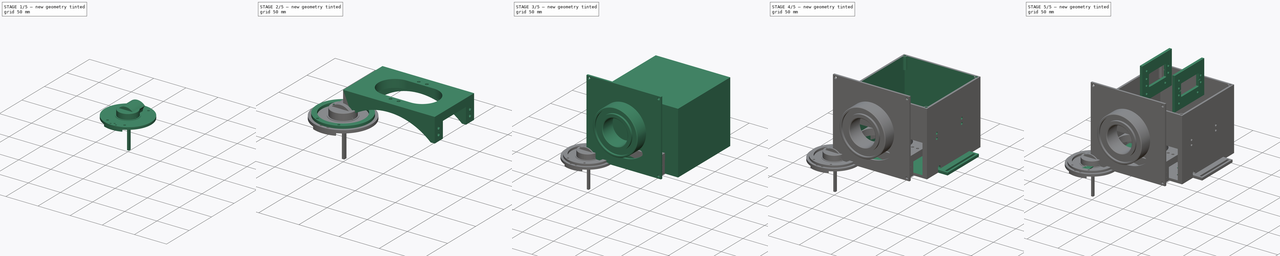
[diagram: build sequence overview — one tinted view per stage of 5, left to right]
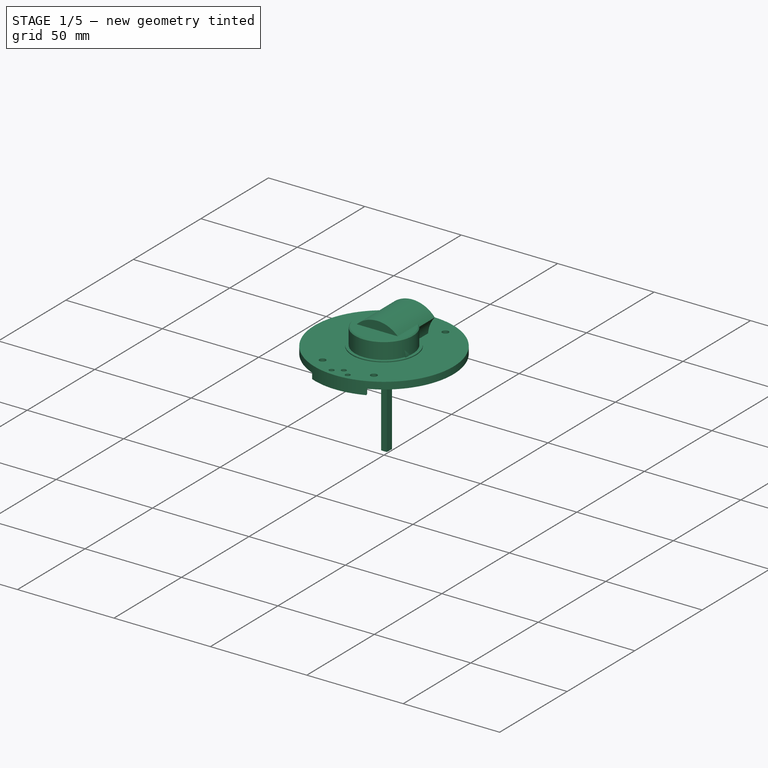
[diagram: stage 1 of 5 — iso view after this stage's code; geometry added in this stage tinted green]
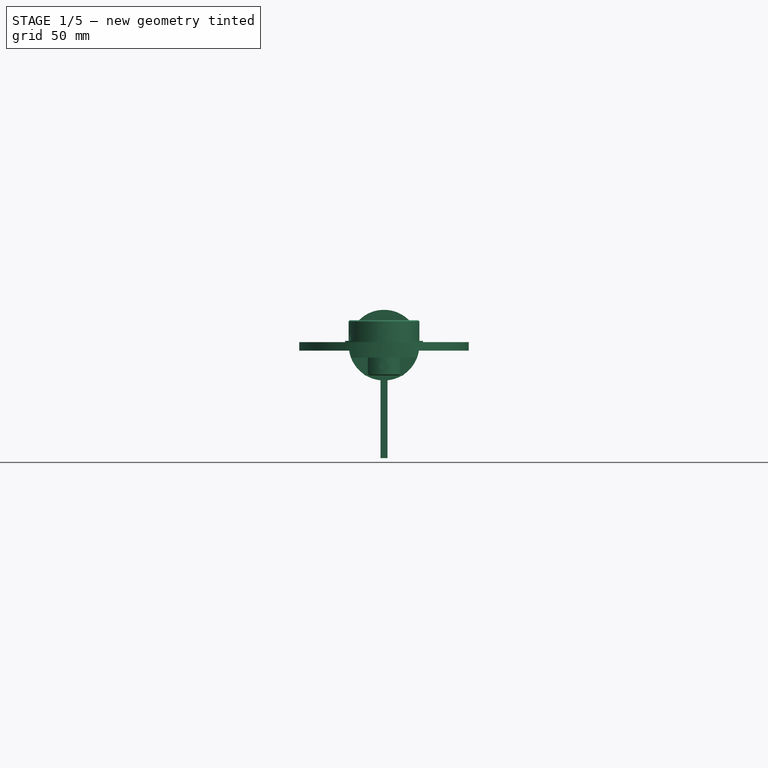
[diagram: stage 1 of 5 — front view after this stage's code; geometry added in this stage tinted green]
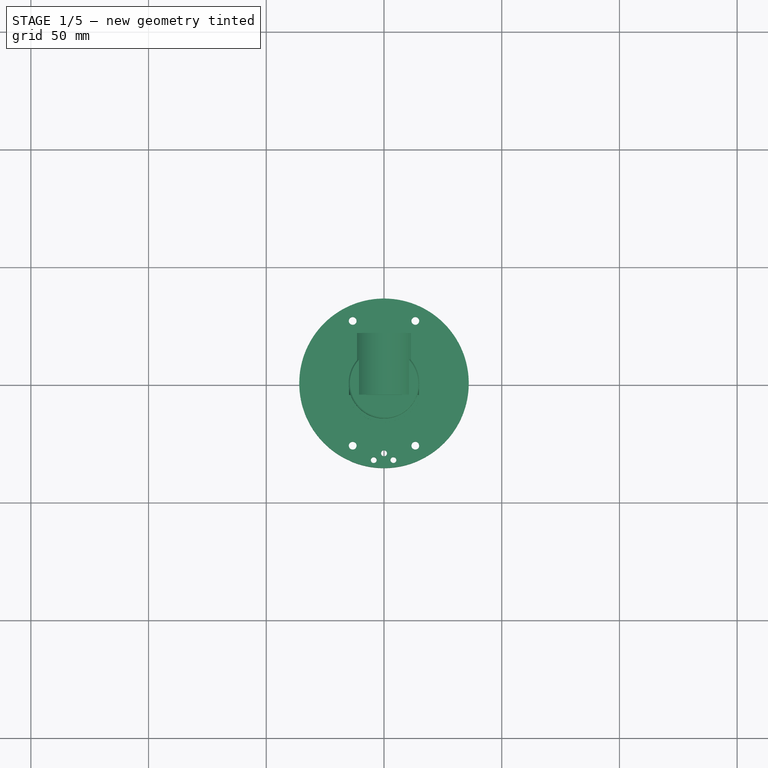
[diagram: stage 1 of 5 — top view after this stage's code; geometry added in this stage tinted green]
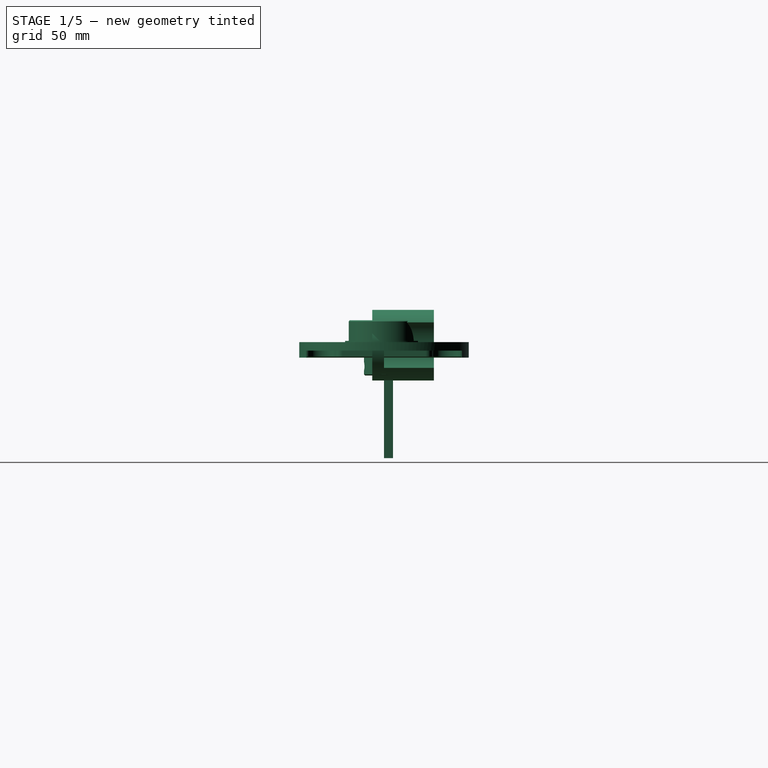
[diagram: stage 1 of 5 — right view after this stage's code; geometry added in this stage tinted green]
FCSTD DOCUMENT  (FreeCAD 0.18R16146 (Git))
Label: pArm
License: All rights reserved
LicenseURL: http://en.wikipedia.org/wiki/All_rights_reserved
objects: Part::Feature×85, Sketcher::SketchObject×53, PartDesign::Pocket×38, PartDesign::Pad×15, PartDesign::Body×8, App::Part×7, App::DocumentObjectGroup×6, Part::FeaturePython×2, PartDesign::Chamfer×2, PartDesign::Plane×2, PartDesign::AdditiveBox×1, Part::Mirroring×1, PartDesign::FeatureBase×1, Part::Part2DObjectPython×1
note: 263 computed .brp shape members not serialized (recipe doc carries the construction recipe); baked Part::Feature solids carry a one-line shape summary decoded from their .brp

FEATURE [PartDesign::Body] Body009  label="MotorSupport"
  Group = -> [Sketch067,Pad016,Sketch068,Pocket043,Sketch069,Pocket044,Sketch070,Pocket045,Sketch071,Pocket046,Sketch072,Pocket047,DatumPlane002,Sketch073,Pocket048,DatumPlane003,Sketch074,Pocket049,Sketch075,Pocket050]
  Origin = -> Origin028
  Placement = pos=(18,30,-2) rot=(0,0,1;0rad)
  Tip = -> Pocket050
FEATURE [Sketcher::SketchObject] Sketch080
  MapMode = 5
  Placement = pos=(0,0,0) rot=(1,0,0;1.5708rad)
  Support = -> [XZ_Plane030]
  sketch-geometry (2):
    g0: GeomPoint X=0 Y=-9 Z=0
    g1: Circle CenterX=0 CenterY=-9 CenterZ=0 NormalX=0 NormalY=0 NormalZ=1 AngleXU=0 Radius=1.9
  constraints (3):
    c: PointOnObject(g0,g-2)
    c: Coincident(g1,g0)
    c: Radius(g1) = 1.9
FEATURE [Part::Feature] Part__Feature137  label="轴承支撑轴001"
  Placement = pos=(85.1146,104.103,-119.904) rot=(0.57735,0.57735,-0.57735;2.0944rad)
  shape: bbox 72 x 23.5 x 72 mm, 84 faces (baked)
FEATURE [PartDesign::FeatureBase] BaseFeature
  BaseFeature = -> Part__Feature137
FEATURE [Sketcher::SketchObject] Sketch078
  ExternalGeometry = -> [BaseFeature]
  MapMode = 5
  Placement = pos=(0,0,-2.3) rot=(1,0,0;3.14159rad)
  Support = -> [BaseFeature]
  sketch-geometry (8):
    g0: Circle CenterX=13.3 CenterY=26.5 CenterZ=0 NormalX=0 NormalY=0 NormalZ=1 AngleXU=0 Radius=1.4
    g1: Circle CenterX=-13.3 CenterY=26.5 CenterZ=0 NormalX=0 NormalY=0 NormalZ=1 AngleXU=0 Radius=1.4
    g2: Circle CenterX=-13.3 CenterY=-26.5 CenterZ=0 NormalX=0 NormalY=0 NormalZ=1 AngleXU=0 Radius=1.4
    g3: Circle CenterX=13.3 CenterY=-26.5 CenterZ=0 NormalX=0 NormalY=0 NormalZ=1 AngleXU=0 Radius=1.4
    g4: Circle CenterX=-13.3 CenterY=26.5 CenterZ=0 NormalX=0 NormalY=0 NormalZ=1 AngleXU=0 Radius=1.65
    g5: Circle CenterX=13.3 CenterY=26.5 CenterZ=0 NormalX=0 NormalY=0 NormalZ=1 AngleXU=0 Radius=1.65
    g6: Circle CenterX=13.3 CenterY=-26.5 CenterZ=0 NormalX=0 NormalY=0 NormalZ=1 AngleXU=0 Radius=1.65
    g7: Circle CenterX=-13.3 CenterY=-26.5 CenterZ=0 NormalX=0 NormalY=0 NormalZ=1 AngleXU=0 Radius=1.65
  constraints (16):
    c: Radius(g0) = 1.4
    c: Coincident(g1,g-8)
    c: Coincident(g2,g-4)
    c: Coincident(g3,g-6)
    c: Radius(g2) = 1.4
    c: Radius(g3) = 1.4
    c: Radius(g1) = 1.4
    c: Coincident(g0,g-10)
    c: Coincident(g4,g1)
    c: PointOnObject(g-8,g4)
    c: Coincident(g5,g0)
    c: PointOnObject(g-10,g5)
    c: Coincident(g6,g3)
    c: PointOnObject(g-6,g6)
    c: Coincident(g7,g2)
    c: PointOnObject(g-4,g7)
FEATURE [PartDesign::Pocket] Pocket055
  BaseFeature = -> BaseFeature
  Length = 17
  Length2 = 100
  Midplane = true
  Profile = -> Sketch080
  Type = 1
FEATURE [Sketcher::SketchObject] Sketch081
  ExternalGeometry = -> [Pocket055]
  MapMode = 5
  Placement = pos=(0,0,0) rot=(0.57735,0.57735,0.57735;2.0944rad)
  Support = -> [YZ_Plane028]
  sketch-geometry (1):
    g0: Circle CenterX=0 CenterY=-9 CenterZ=0 NormalX=0 NormalY=0 NormalZ=1 AngleXU=0 Radius=1.9
  constraints (3):
    c: PointOnObject(g0,g-2)
    c: Radius(g0) = 1.9
    c: DistanceY(g0,g-1) = 9
FEATURE [PartDesign::Pocket] Pocket054
  BaseFeature = -> Pocket055
  Length = 5
  Length2 = 100
  Midplane = true
  Profile = -> Sketch081
  Type = 1
FEATURE [PartDesign::Body] Body012  label="RotaryDisk"
  BaseFeature = -> Part__Feature137
  Group = -> [BaseFeature,Sketch078,Sketch080,Pocket055,Sketch081,Pocket054,Pad017,Sketch079,Pad018,Sketch082,Pocket051,Sketch077,Pocket053,Sketch076,Pocket052]
  Origin = -> Origin031
  Placement = pos=(75.2,74.9,80) rot=(0,-1,0;3.14159rad)
  Tip = -> Pocket052
FEATURE [Sketcher::SketchObject] Sketch085
  MapMode = 5
  Placement = pos=(0,0,0) rot=(1,0,0;1.5708rad)
  Support = -> [XZ_Plane031]
  sketch-geometry (1):
    g0: Circle CenterX=0 CenterY=0 CenterZ=0 NormalX=0 NormalY=0 NormalZ=1 AngleXU=0 Radius=15
  constraints (2):
    c: Coincident(g0,g-1)
    c: Radius(g0) = 15
FEATURE [PartDesign::Pad] Pad020
  Length = 5
  Length2 = 100
  Placement = pos=(0,0,0) rot=(1,0,0;1.5708rad)
  Profile = -> Sketch085
  Type = 0
FEATURE [Sketcher::SketchObject] Sketch084
  MapMode = 5
  Placement = pos=(0,0,0) rot=(-1,0,0;1.5708rad)
  Support = -> [Pad020]
  sketch-geometry (3):
    g0: Circle [constr] CenterX=0 CenterY=0 CenterZ=0 NormalX=0 NormalY=0 NormalZ=1 AngleXU=0 Radius=11.475
    g1: Circle CenterX=-11.475 CenterY=0 CenterZ=0 NormalX=0 NormalY=0 NormalZ=1 AngleXU=0 Radius=1.4
    g2: Circle CenterX=11.475 CenterY=0 CenterZ=0 NormalX=0 NormalY=0 NormalZ=1 AngleXU=0 Radius=1.4
  constraints (8):
    c: Coincident(g0,g-1)
    c: Radius(g0) = 11.475
    c: PointOnObject(g1,g0)
    c: PointOnObject(g1,g-1)
    c: Radius(g1) = 1.4
    c: PointOnObject(g2,g-1)
    c: PointOnObject(g2,g0)
    c: Radius(g2) = 1.4
FEATURE [PartDesign::Pocket] Pocket057
  BaseFeature = -> Pad020
  Length = 5
  Length2 = 100
  Placement = pos=(0,0,0) rot=(1,0,0;1.5708rad)
  Profile = -> Sketch084
  Type = 1
FEATURE [Sketcher::SketchObject] Sketch086
  ExternalGeometry = -> [Pocket057]
  MapMode = 5
  Placement = pos=(0,0,0) rot=(-1,0,0;1.5708rad)
  Support = -> [Pocket057]
  sketch-geometry (9):
    g0: ArcOfCircle CenterX=0 CenterY=0 CenterZ=0 NormalX=0 NormalY=0 NormalZ=1 AngleXU=0 Radius=15 StartAngle=0.699755 EndAngle=2.44184
    g1: GeomPoint X=-15 Y=0 Z=0
    g2: GeomPoint X=-7.95 Y=0 Z=0
    g3: LineSegment [constr] StartX=-11.475 StartY=-9.66045 StartZ=0 EndX=-11.475 EndY=9.66045 EndZ=0
    g4: ArcOfCircle CenterX=-22.95 CenterY=-2e-16 CenterZ=0 NormalX=0 NormalY=0 NormalZ=1 AngleXU=0 Radius=15 StartAngle=5.58343 EndAngle=6.98294
    g5: GeomPoint X=7.95 Y=0 Z=0
    g6: LineSegment [constr] StartX=11.475 StartY=9.66045 StartZ=0 EndX=11.475 EndY=-9.66045 EndZ=0
    g7: ArcOfCircle CenterX=22.95 CenterY=1.9e-15 CenterZ=0 NormalX=0 NormalY=0 NormalZ=1 AngleXU=0 Radius=15 StartAngle=2.44184 EndAngle=3.84135
    g8: ArcOfCircle CenterX=0 CenterY=0 CenterZ=0 NormalX=0 NormalY=0 NormalZ=1 AngleXU=0 Radius=15 StartAngle=3.84135 EndAngle=5.58343
  constraints (25):
    c: Coincident(g0,g-1)
    c: Radius(g0) = 15
    c: PointOnObject(g1,g0)
    c: PointOnObject(g1,g-1)
    c: Distance(g1,g-4) = 3.525
    c: PointOnObject(g2,g-1)
    c: Distance(g-4,g2) = 3.525
    c: Vertical(g3)
    c: PointOnObject(g-4,g3)
    c: PointOnObject(g4,g0)
    c: PointOnObject(g2,g4)
    c: PointOnObject(g5,g-1)
    c: Distance(g5,g-5) = 3.525
    c: Vertical(g6)
    c: PointOnObject(g-5,g6)
    c: Coincident(g7,g6)
    c: PointOnObject(g5,g7)
    c: Coincident(g0,g6)
    c: Coincident(g0,g3)
    c: Coincident(g8,g3)
    c: Coincident(g0,g8)
    c: Coincident(g4,g8)
    c: Coincident(g4,g0)
    c: Coincident(g8,g7)
    c: Coincident(g7,g0)
FEATURE [PartDesign::Pad] Pad019
  BaseFeature = -> Pocket057
  Length = 21.2
  Length2 = 100
  Placement = pos=(0,0,0) rot=(1,0,0;1.5708rad)
  Profile = -> Sketch086
  Type = 0
FEATURE [Sketcher::SketchObject] Sketch083
  MapMode = 5
  Placement = pos=(0,21.2,-9.3e-15) rot=(-1,0,0;1.5708rad)
  Support = -> [Pad019]
  sketch-geometry (1):
    g0: Circle CenterX=0 CenterY=0 CenterZ=0 NormalX=0 NormalY=0 NormalZ=1 AngleXU=0 Radius=4
  constraints (2):
    c: Coincident(g0,g-1)
    c: Radius(g0) = 4
FEATURE [PartDesign::Pocket] Pocket056
  BaseFeature = -> Pad019
  Length = 4
  Length2 = 100
  Placement = pos=(0,0,0) rot=(1,0,0;1.5708rad)
  Profile = -> Sketch083
  Type = 0
FEATURE [Sketcher::SketchObject] Sketch087
  ExternalGeometry = -> [Pocket056]
  MapMode = 5
  Placement = pos=(0,21.2,-9.3e-15) rot=(-1,0,0;1.5708rad)
  Support = -> [Pocket056]
  sketch-geometry (10):
    g0: LineSegment [constr] StartX=-7.95 StartY=9.66045 StartZ=0 EndX=7.95 EndY=9.66045 EndZ=0
    g1: LineSegment [constr] StartX=7.95 StartY=9.66045 StartZ=0 EndX=7.95 EndY=-9.66045 EndZ=0
    g2: LineSegment [constr] StartX=7.95 StartY=-9.66045 StartZ=0 EndX=-7.95 EndY=-9.66045 EndZ=0
    g3: LineSegment [constr] StartX=-7.95 StartY=-9.66045 StartZ=0 EndX=-7.95 EndY=9.66045 EndZ=0
    g4: LineSegment [constr] StartX=-11.475 StartY=9.66045 StartZ=0 EndX=11.475 EndY=9.66045 EndZ=0
    g5: LineSegment [constr] StartX=-11.475 StartY=-9.66045 StartZ=0 EndX=11.475 EndY=-9.66045 EndZ=0
    g6: Circle CenterX=-7.95 CenterY=9.66045 CenterZ=0 NormalX=0 NormalY=0 NormalZ=1 AngleXU=0 Radius=1.4
    g7: Circle CenterX=7.95 CenterY=9.66045 CenterZ=0 NormalX=0 NormalY=0 NormalZ=1 AngleXU=0 Radius=1.4
    g8: Circle CenterX=-7.95 CenterY=-9.66045 CenterZ=0 NormalX=0 NormalY=0 NormalZ=1 AngleXU=0 Radius=1.4
    g9: Circle CenterX=7.95 CenterY=-9.66045 CenterZ=0 NormalX=0 NormalY=0 NormalZ=1 AngleXU=0 Radius=1.4
  constraints (22):
    c: Coincident(g0,g1)
    c: Coincident(g1,g2)
    c: Coincident(g2,g3)
    c: Coincident(g3,g0)
    c: Vertical(g1)
    c: Vertical(g3)
    c: Tangent(g1,g-4)
    c: Tangent(g3,g-3)
    c: Coincident(g4,g-3)
    c: Coincident(g4,g-4)
    c: Tangent(g0,g4)
    c: Coincident(g5,g-3)
    c: Coincident(g5,g-4)
    c: Tangent(g5,g2)
    c: Coincident(g6,g0)
    c: Radius(g6) = 1.4
    c: Coincident(g7,g0)
    c: Radius(g7) = 1.4
    c: Coincident(g8,g2)
    c: Radius(g8) = 1.4
    c: Coincident(g9,g1)
    c: Radius(g9) = 1.4
FEATURE [PartDesign::Pocket] Pocket058
  BaseFeature = -> Pocket056
  Length = 8
  Length2 = 100
  Placement = pos=(0,0,0) rot=(1,0,0;1.5708rad)
  Profile = -> Sketch087
  Type = 0
FEATURE [PartDesign::Body] Body010  label="AxisTower"
  Group = -> [Sketch085,Pad020,Sketch084,Pocket057,Sketch086,Pad019,Sketch083,Pocket056,Sketch087,Pocket058]
  Origin = -> Origin030
  Placement = pos=(75.2,74.8,64.5) rot=(-1,0,0;1.5708rad)
  Tip = -> Pocket058
FEATURE [Sketcher::SketchObject] CopySketch078
  Placement = pos=(0,0,0) rot=(-1,0,0;1.5708rad)
  sketch-geometry (9):
    g0: ArcOfCircle CenterX=0 CenterY=0 CenterZ=0 NormalX=0 NormalY=0 NormalZ=1 AngleXU=0 Radius=15 StartAngle=0.699755 EndAngle=2.44184
    g1: GeomPoint X=-15 Y=0 Z=0
    g2: GeomPoint X=-7.95 Y=0 Z=0
    g3: LineSegment [constr] StartX=-11.475 StartY=-9.66045 StartZ=0 EndX=-11.475 EndY=9.66045 EndZ=0
    g4: ArcOfCircle CenterX=-22.95 CenterY=-2e-16 CenterZ=0 NormalX=0 NormalY=0 NormalZ=1 AngleXU=0 Radius=15 StartAngle=5.58343 EndAngle=6.98294
    g5: GeomPoint X=7.95 Y=0 Z=0
    g6: LineSegment [constr] StartX=11.475 StartY=9.66045 StartZ=0 EndX=11.475 EndY=-9.66045 EndZ=0
    g7: ArcOfCircle CenterX=22.95 CenterY=1.9e-15 CenterZ=0 NormalX=0 NormalY=0 NormalZ=1 AngleXU=0 Radius=15 StartAngle=2.44184 EndAngle=3.84135
    g8: ArcOfCircle CenterX=0 CenterY=0 CenterZ=0 NormalX=0 NormalY=0 NormalZ=1 AngleXU=0 Radius=15 StartAngle=3.84135 EndAngle=5.58343
  constraints (20):
    c: Coincident(g0,g-1)
    c: Radius(g0) = 15
    c: PointOnObject(g1,g0)
    c: PointOnObject(g1,g-1)
    c: PointOnObject(g2,g-1)
    c: Vertical(g3)
    c: PointOnObject(g4,g0)
    c: PointOnObject(g2,g4)
    c: PointOnObject(g5,g-1)
    c: Vertical(g6)
    c: Coincident(g7,g6)
    c: PointOnObject(g5,g7)
    c: Coincident(g0,g6)
    c: Coincident(g0,g3)
    c: Coincident(g8,g3)
    c: Coincident(g0,g8)
    c: Coincident(g4,g8)
    c: Coincident(g4,g0)
    c: Coincident(g8,g7)
    c: Coincident(g7,g0)
FEATURE [PartDesign::Pad] Pad022
  Length = 3.8
  Length2 = 100
  Placement = pos=(0,0,0) rot=(-1,0,0;1.5708rad)
  Profile = -> CopySketch078
  Type = 0
FEATURE [Part::Part2DObjectPython] InvoluteGear002  # Draft 2D object (typed FeaturePython)
  ExternalGear = true
  HighPrecision = true
  MapMode = 5
  Modules = 0.257
  NumberOfTeeth = 25
  Placement = pos=(0,3.8,-8e-16) rot=(-1,0,0;1.5708rad)
  PressureAngle = 36
  Support = -> [Pad022]
FEATURE [PartDesign::Pocket] Pocket059
  BaseFeature = -> Pad022
  Length = 5
  Length2 = 100
  Placement = pos=(0,0,0) rot=(-1,0,0;1.5708rad)
  Profile = -> InvoluteGear002
  Type = 1
FEATURE [Sketcher::SketchObject] Sketch089
  ExternalGeometry = -> [Pocket059]
  MapMode = 5
  Placement = pos=(0,3.8,-8e-16) rot=(-1,0,0;1.5708rad)
  Support = -> [Pocket059]
  sketch-geometry (10):
    g0: LineSegment [constr] StartX=-11.475 StartY=9.66045 StartZ=0 EndX=11.475 EndY=9.66045 EndZ=0
    g1: LineSegment [constr] StartX=-11.475 StartY=-9.66045 StartZ=0 EndX=11.475 EndY=-9.66045 EndZ=0
    g2: LineSegment [constr] StartX=-7.95 StartY=9.66045 StartZ=0 EndX=7.95 EndY=9.66045 EndZ=0
    g3: LineSegment [constr] StartX=7.95 StartY=9.66045 StartZ=0 EndX=7.95 EndY=-9.66045 EndZ=0
    g4: LineSegment [constr] StartX=7.95 StartY=-9.66045 StartZ=0 EndX=-7.95 EndY=-9.66045 EndZ=0
    g5: LineSegment [constr] StartX=-7.95 StartY=-9.66045 StartZ=0 EndX=-7.95 EndY=9.66045 EndZ=0
    g6: Circle CenterX=-7.95 CenterY=9.66045 CenterZ=0 NormalX=0 NormalY=0 NormalZ=1 AngleXU=0 Radius=1.4
    g7: Circle CenterX=7.95 CenterY=9.66045 CenterZ=0 NormalX=0 NormalY=0 NormalZ=1 AngleXU=0 Radius=1.4
    g8: Circle CenterX=-7.95 CenterY=-9.66045 CenterZ=0 NormalX=0 NormalY=0 NormalZ=1 AngleXU=0 Radius=1.4
    g9: Circle CenterX=7.95 CenterY=-9.66045 CenterZ=0 NormalX=0 NormalY=0 NormalZ=1 AngleXU=0 Radius=1.4
  constraints (24):
    c: Coincident(g0,g-3)
    c: Coincident(g0,g-4)
    c: Coincident(g1,g-3)
    c: Coincident(g1,g-4)
    c: Coincident(g2,g3)
    c: Coincident(g3,g4)
    c: Coincident(g4,g5)
    c: Coincident(g5,g2)
    c: Horizontal(g2)
    c: Horizontal(g4)
    c: Vertical(g3)
    c: Vertical(g5)
    c: PointOnObject(g2,g0)
    c: PointOnObject(g3,g1)
    c: Tangent(g3,g-4)
    c: Tangent(g5,g-3)
    c: Coincident(g6,g2)
    c: Coincident(g7,g2)
    c: Coincident(g8,g4)
    c: Coincident(g9,g3)
    c: Radius(g8) = 1.4
    c: Radius(g9) = 1.4
    c: Radius(g6) = 1.4
    c: Radius(g7) = 1.4
FEATURE [PartDesign::Pocket] Pocket060
  BaseFeature = -> Pocket059
  Length = 5
  Length2 = 100
  Placement = pos=(0,0,0) rot=(-1,0,0;1.5708rad)
  Profile = -> Sketch089
  Type = 1
FEATURE [Sketcher::SketchObject] Sketch088
  ExternalGeometry = -> [Pocket060]
  MapMode = 5
  Placement = pos=(0,3.8,-8e-16) rot=(-1,0,0;1.5708rad)
  Support = -> [Pocket060]
  sketch-geometry (6):
    g0: LineSegment StartX=-1.5 StartY=48 StartZ=0 EndX=1.5 EndY=48 EndZ=0
    g1: LineSegment StartX=1.5 StartY=48 StartZ=0 EndX=1.5 EndY=14 EndZ=0
    g2: LineSegment StartX=1.5 StartY=14 StartZ=0 EndX=-1.5 EndY=14 EndZ=0
    g3: LineSegment StartX=-1.5 StartY=14 StartZ=0 EndX=-1.5 EndY=48 EndZ=0
    g4: GeomPoint X=0 Y=14 Z=0
    g5: GeomPoint X=0 Y=15 Z=0
  constraints (16):
    c: Coincident(g0,g1)
    c: Coincident(g1,g2)
    c: Coincident(g2,g3)
    c: Coincident(g3,g0)
    c: Horizontal(g0)
    c: Horizontal(g2)
    c: Vertical(g1)
    c: Vertical(g3)
    c: DistanceX(g0,g0) = 3
    c: PointOnObject(g4,g2)
    c: Distance(g4,g1) = 1.5
    c: PointOnObject(g4,g-2)
    c: DistanceY(g1,g0) = 34
    c: PointOnObject(g5,g-3)
    c: PointOnObject(g5,g-2)
    c: Distance(g4,g5) = 1
FEATURE [PartDesign::Pad] Pad021
  BaseFeature = -> Pocket060
  Length = 3.8
  Length2 = 100
  Placement = pos=(0,0,0) rot=(-1,0,0;1.5708rad)
  Profile = -> Sketch088
  Reversed = true
  Type = 0
FEATURE [PartDesign::Body] Body011  label="LowerAxisTowerPiece"
  Group = -> [Pad022,InvoluteGear002,Pocket059,Sketch089,Pocket060,Sketch088,Pad021]
  Origin = -> Origin029
  Placement = pos=(75.1,74.9,43.3) rot=(0,-0.707107,0.707107;3.14159rad)
  Tip = -> Pad021
FEATURE [App::DocumentObjectGroup] Group  label="BaseMotorSupport"
  Group = -> [Body004,S3006_S148_U301PAA,Body009,Body010,Body011,Body012]
FEATURE [App::DocumentObjectGroup] Group003  label="Base"
  Group = -> [Group,Group004]
FEATURE [App::DocumentObjectGroup] Group005  label="pArm"
  Group = -> [Group003,Group001]
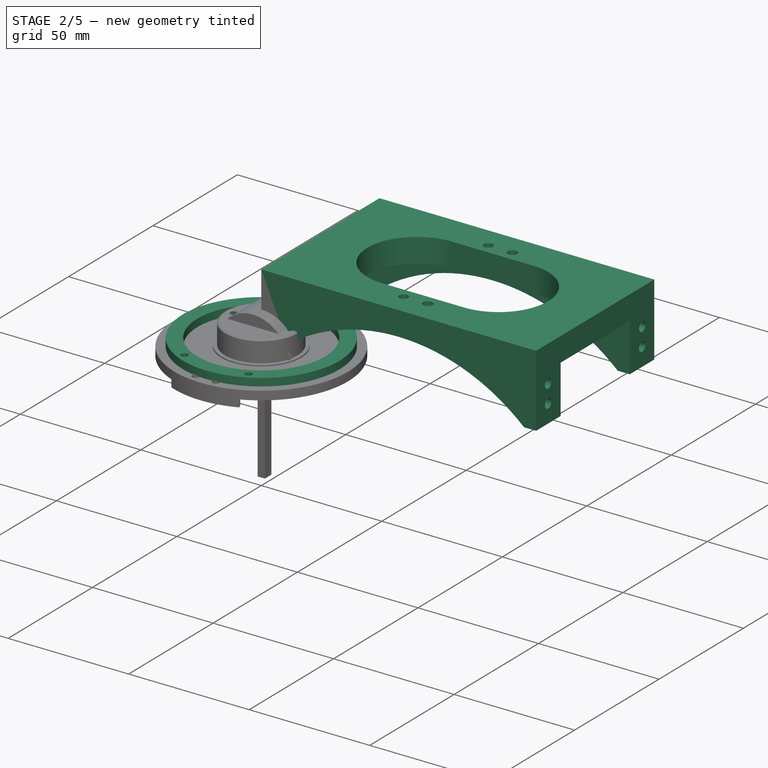
[diagram: stage 2 of 5 — iso view after this stage's code; geometry added in this stage tinted green]
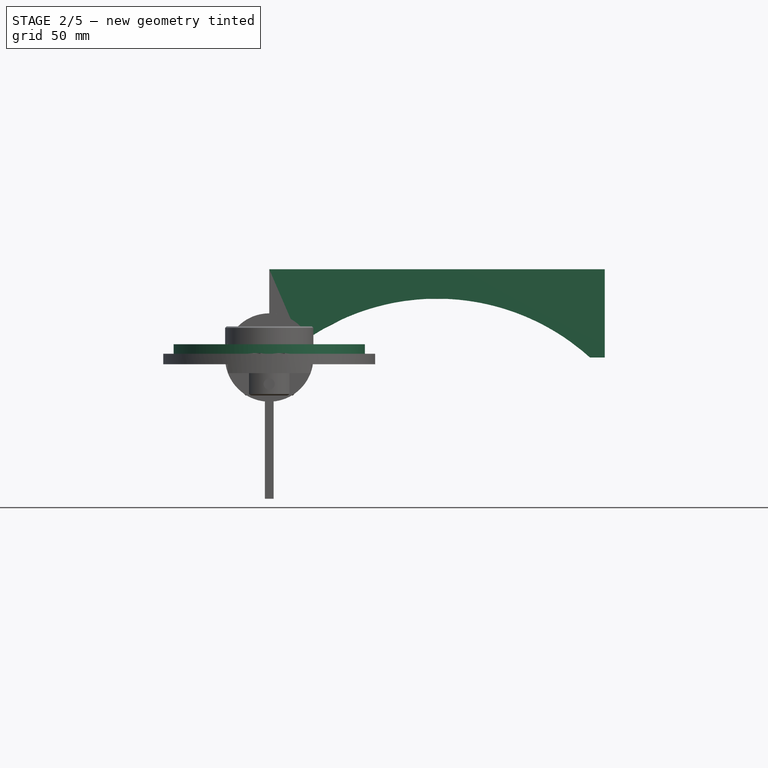
[diagram: stage 2 of 5 — front view after this stage's code; geometry added in this stage tinted green]
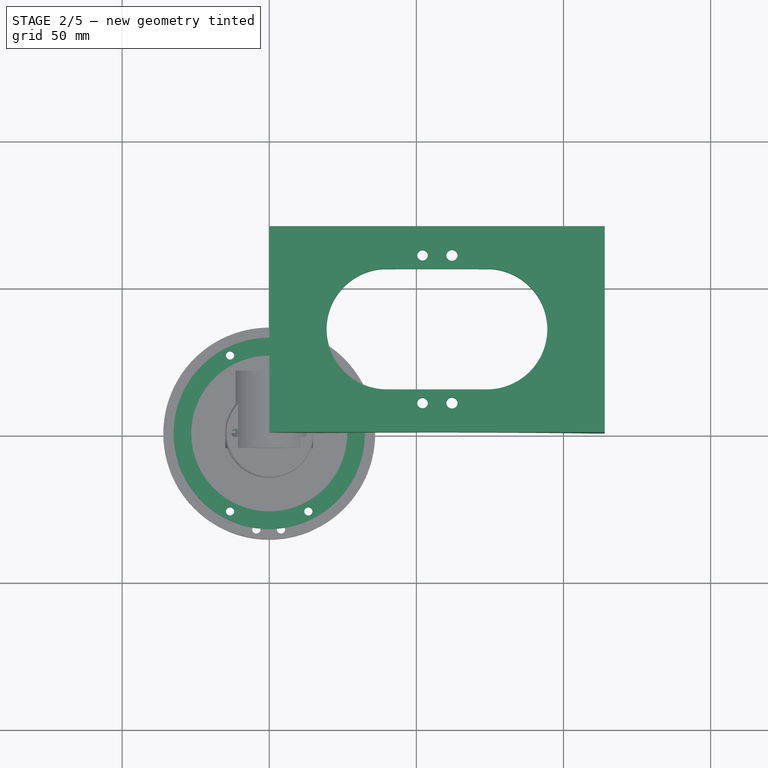
[diagram: stage 2 of 5 — top view after this stage's code; geometry added in this stage tinted green]
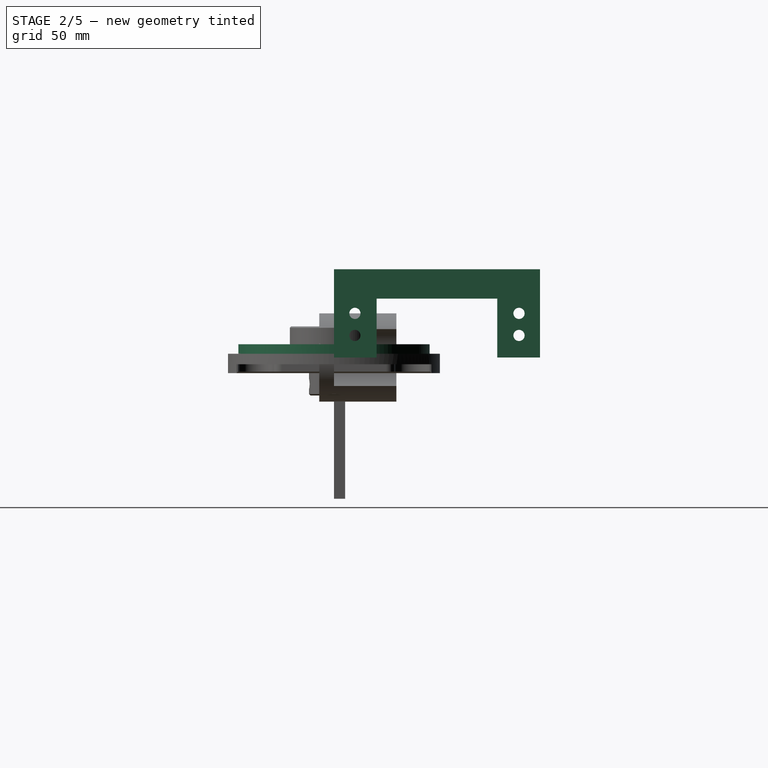
[diagram: stage 2 of 5 — right view after this stage's code; geometry added in this stage tinted green]
FEATURE [PartDesign::Body] Body007  label="BaseRoof"
  Group = -> [Sketch054,Pad015,Sketch065,Pocket034,Sketch064,Pocket036,Sketch058,Pad013,Sketch055,Pocket035,Sketch057,Sketch056,Pocket037,Chamfer003,Chamfer002,Sketch066,Pocket042]
  Origin = -> Origin026
  Placement = pos=(15,15,56) rot=(-1,0,0;1.5708rad)
  Tip = -> Pocket042
FEATURE [App::DocumentObjectGroup] Group004  label="Box"
  Group = -> [Body,Body001,Body007]
FEATURE [Sketcher::SketchObject] Sketch067
  MapMode = 5
  Support = -> [XY_Plane028]
  sketch-geometry (4):
    g0: LineSegment StartX=0 StartY=0 StartZ=0 EndX=114 EndY=0 EndZ=0
    g1: LineSegment StartX=114 StartY=0 StartZ=0 EndX=114 EndY=70 EndZ=0
    g2: LineSegment StartX=114 StartY=70 StartZ=0 EndX=0 EndY=70 EndZ=0
    g3: LineSegment StartX=0 StartY=70 StartZ=0 EndX=0 EndY=0 EndZ=0
  constraints (12):
    c: PointOnObject(g0,g-1)
    c: Horizontal(g0)
    c: Coincident(g1,g0)
    c: Vertical(g1)
    c: PointOnObject(g2,g-2)
    c: Horizontal(g2)
    c: Coincident(g3,g2)
    c: Coincident(g3,g0)
    c: Vertical(g3)
    c: Distance(g0,g0) = 114
    c: Distance(g0,g2) = 70
    c: Coincident(g2,g1)
FEATURE [PartDesign::Pad] Pad016
  Length = 30
  Length2 = 100
  Profile = -> Sketch067
  Type = 0
FEATURE [Sketcher::SketchObject] Sketch068
  ExternalGeometry = -> [Pad016]
  MapMode = 5
  Placement = pos=(0,0,30) rot=(0,0,1;0rad)
  Support = -> [Pad016]
  sketch-geometry (8):
    g0: LineSegment [constr] StartX=40 StartY=55.5 StartZ=0 EndX=40 EndY=14.5 EndZ=0
    g1: LineSegment StartX=40 StartY=14.5 StartZ=0 EndX=74 EndY=14.5 EndZ=0
    g2: LineSegment [constr] StartX=74 StartY=14.5 StartZ=0 EndX=74 EndY=55.5 EndZ=0
    g3: LineSegment StartX=74 StartY=55.5 StartZ=0 EndX=40 EndY=55.5 EndZ=0
    g4: GeomPoint X=74 Y=35 Z=0
    g5: ArcOfCircle CenterX=74 CenterY=35 CenterZ=0 NormalX=0 NormalY=0 NormalZ=1 AngleXU=0 Radius=20.5 StartAngle=4.71239 EndAngle=7.85398
    g6: GeomPoint X=40 Y=35 Z=0
    g7: ArcOfCircle CenterX=40 CenterY=35 CenterZ=0 NormalX=0 NormalY=0 NormalZ=1 AngleXU=0 Radius=20.5 StartAngle=1.5708 EndAngle=4.71239
  constraints (20):
    c: Vertical(g0)
    c: Coincident(g1,g0)
    c: Horizontal(g1)
    c: Coincident(g2,g1)
    c: Vertical(g2)
    c: Coincident(g3,g2)
    c: Coincident(g3,g0)
    c: Horizontal(g3)
    c: Distance(g0,g1) = 34
    c: Distance(g0,g0) = 41
    c: Distance(g1,g-3) = 40
    c: Distance(g0,g-5) = 14.5
    c: PointOnObject(g4,g2)
    c: Coincident(g5,g4)
    c: Coincident(g5,g3)
    c: Coincident(g5,g1)
    c: PointOnObject(g6,g0)
    c: Coincident(g7,g6)
    c: Coincident(g7,g3)
    c: Coincident(g7,g1)
FEATURE [PartDesign::Pocket] Pocket043
  BaseFeature = -> Pad016
  Length = 5
  Length2 = 100
  Profile = -> Sketch068
  Type = 1
FEATURE [Sketcher::SketchObject] Sketch069
  ExternalGeometry = -> [Pocket043]
  MapMode = 5
  Placement = pos=(0,0,0) rot=(1,0,0;1.5708rad)
  Support = -> [Pocket043]
  sketch-geometry (5):
    g0: LineSegment [constr] StartX=0 StartY=20 StartZ=0 EndX=114 EndY=20 EndZ=0
    g1: LineSegment StartX=5 StartY=-5.5635e-12 StartZ=0 EndX=109 EndY=-5.5707e-12 EndZ=0
    g2: LineSegment [constr] StartX=0 StartY=-5.5635e-12 StartZ=0 EndX=5 EndY=-5.5635e-12 EndZ=0
    g3: LineSegment [constr] StartX=109 StartY=-5.5707e-12 StartZ=0 EndX=114 EndY=-5.5707e-12 EndZ=0
    g4: ArcOfCircle CenterX=57 CenterY=-57.6 CenterZ=0 NormalX=0 NormalY=0 NormalZ=1 AngleXU=0 Radius=77.6 StartAngle=0.836449 EndAngle=2.30514
  constraints (15):
    c: PointOnObject(g0,g-3)
    c: PointOnObject(g0,g-5)
    c: Horizontal(g0)
    c: Coincident(g2,g-1)
    c: Coincident(g2,g1)
    c: Horizontal(g2)
    c: Coincident(g3,g1)
    c: Coincident(g3,g-5)
    c: Horizontal(g3)
    c: Distance(g3) = 5
    c: Distance(g2) = 5
    c: Coincident(g4,g1)
    c: Coincident(g4,g1)
    c: Tangent(g4,g0)
    c: Distance(g0,g-6) = 10
FEATURE [PartDesign::Pocket] Pocket044
  BaseFeature = -> Pocket043
  Length = 5
  Length2 = 100
  Profile = -> Sketch069
  Type = 1
FEATURE [Sketcher::SketchObject] Sketch070
  ExternalGeometry = -> [Pocket044]
  MapMode = 5
  Placement = pos=(0,0,0) rot=(0.57735,-0.57735,-0.57735;2.0944rad)
  Support = -> [Pocket044]
  sketch-geometry (4):
    g0: LineSegment StartX=-55.5 StartY=0 StartZ=0 EndX=-55.5 EndY=20 EndZ=0
    g1: LineSegment StartX=-55.5 StartY=20 StartZ=0 EndX=-14.5 EndY=20 EndZ=0
    g2: LineSegment StartX=-14.5 StartY=20 StartZ=0 EndX=-14.5 EndY=0 EndZ=0
    g3: LineSegment StartX=-14.5 StartY=0 StartZ=0 EndX=-55.5 EndY=0 EndZ=0
FEATURE [PartDesign::Pocket] Pocket045
  BaseFeature = -> Pocket044
  Length = 5
  Length2 = 100
  Profile = -> Sketch070
  Type = 1
FEATURE [Sketcher::SketchObject] Sketch071
  ExternalGeometry = -> [Pocket045]
  MapMode = 5
  Placement = pos=(0,0,30) rot=(0,0,1;0rad)
  Support = -> [Pocket045]
  sketch-geometry (4):
    g0: Circle CenterX=52.1 CenterY=60.1 CenterZ=0 NormalX=0 NormalY=0 NormalZ=1 AngleXU=0 Radius=1.8
    g1: Circle CenterX=62.1 CenterY=60.1 CenterZ=0 NormalX=0 NormalY=0 NormalZ=1 AngleXU=0 Radius=1.9
    g2: Circle CenterX=52.1 CenterY=9.9 CenterZ=0 NormalX=0 NormalY=0 NormalZ=1 AngleXU=0 Radius=1.8
    g3: Circle CenterX=62.1 CenterY=9.9 CenterZ=0 NormalX=0 NormalY=0 NormalZ=1 AngleXU=0 Radius=1.9
  constraints (12):
    c: Radius(g3) = 1.9
    c: Radius(g2) = 1.8
    c: Radius(g0) = 1.8
    c: Radius(g1) = 1.9
    c: Distance(g3,g-5) = 51.9
    c: Distance(g3,g-4) = 4.6
    c: Distance(g2,g-6) = 52.1
    c: Distance(g2,g-4) = 4.6
    c: Distance(g1,g-3) = 4.6
    c: Distance(g0,g-3) = 4.6
    c: Distance(g0,g-6) = 52.1
    c: Distance(g1,g-5) = 51.9
FEATURE [PartDesign::Pocket] Pocket046
  BaseFeature = -> Pocket045
  Length = 5
  Length2 = 100
  Profile = -> Sketch071
  Type = 1
FEATURE [Sketcher::SketchObject] Sketch072
  ExternalGeometry = -> [Pocket046]
  MapMode = 5
  Placement = pos=(114,0,0) rot=(0.57735,0.57735,0.57735;2.0944rad)
  Support = -> [Pocket046]
  sketch-geometry (4):
    g0: Circle CenterX=7.12 CenterY=15 CenterZ=0 NormalX=0 NormalY=0 NormalZ=1 AngleXU=0 Radius=1.9
    g1: Circle CenterX=7.12 CenterY=7.5 CenterZ=0 NormalX=0 NormalY=0 NormalZ=1 AngleXU=0 Radius=1.9
    g2: Circle CenterX=62.88 CenterY=15 CenterZ=0 NormalX=0 NormalY=0 NormalZ=1 AngleXU=0 Radius=1.9
    g3: Circle CenterX=62.88 CenterY=7.5 CenterZ=0 NormalX=0 NormalY=0 NormalZ=1 AngleXU=0 Radius=1.9
  constraints (4):
    c: Radius(g1) = 1.9
    c: Radius(g0) = 1.9
    c: Radius(g3) = 1.9
    c: Radius(g2) = 1.9
FEATURE [PartDesign::Pocket] Pocket047
  BaseFeature = -> Pocket046
  Length = 5
  Length2 = 100
  Profile = -> Sketch072
  Type = 1
FEATURE [PartDesign::Plane] DatumPlane002
  AttachmentOffset = pos=(0,0,-20) rot=(0,0,1;0rad)
  Length = 91.3137
  MapMode = 5
  Placement = pos=(94,0,0) rot=(0.57735,0.57735,0.57735;2.0944rad)
  ResizeMode = 0
  Support = -> [Pocket047]
  Width = 51.3137
FEATURE [Sketcher::SketchObject] Sketch073
  ExternalGeometry = -> [Pocket047]
  MapMode = 5
  Placement = pos=(94,0,0) rot=(0.57735,0.57735,0.57735;2.0944rad)
  Support = -> [DatumPlane002]
  sketch-geometry (2):
    g0: Circle CenterX=7.12 CenterY=15 CenterZ=0 NormalX=0 NormalY=0 NormalZ=1 AngleXU=0 Radius=4.5
    g1: Circle CenterX=62.88 CenterY=15 CenterZ=0 NormalX=0 NormalY=0 NormalZ=1 AngleXU=0 Radius=4.5
  constraints (2):
    c: Radius(g0) = 4.5
    c: Radius(g1) = 4.5
FEATURE [PartDesign::Pocket] Pocket048
  BaseFeature = -> Pocket047
  Length = 29
  Length2 = 100
  Profile = -> Sketch073
  Type = 0
FEATURE [PartDesign::Pad] Pad017
  BaseFeature = -> Pocket054
  Length = 3.6
  Length2 = 100
  Profile = -> Sketch078
  Reversed = true
  Type = 0
FEATURE [Sketcher::SketchObject] Sketch079
  MapMode = 5
  Placement = pos=(0,0,1.3) rot=(0,0,1;0rad)
  Support = -> [Pad017]
  sketch-geometry (2):
    g0: Circle CenterX=0 CenterY=0 CenterZ=0 NormalX=0 NormalY=0 NormalZ=1 AngleXU=0 Radius=26.5
    g1: Circle CenterX=0 CenterY=0 CenterZ=0 NormalX=0 NormalY=0 NormalZ=1 AngleXU=0 Radius=32.5
  constraints (4):
    c: Coincident(g0,g-1)
    c: Radius(g0) = 26.5
    c: Coincident(g1,g0)
    c: Radius(g1) = 32.5
FEATURE [PartDesign::Pad] Pad018
  BaseFeature = -> Pad017
  Length = 3.2
  Length2 = 100
  Profile = -> Sketch079
  Type = 0
FEATURE [Sketcher::SketchObject] Sketch082
  ExternalGeometry = -> [Pad018]
  MapMode = 5
  Placement = pos=(0,0,1.3) rot=(1,0,0;3.14159rad)
  Support = -> [Pad018]
  sketch-geometry (4):
    g0: Circle CenterX=-13.3 CenterY=-26.5 CenterZ=0 NormalX=0 NormalY=0 NormalZ=1 AngleXU=0 Radius=1.4
    g1: Circle CenterX=13.3 CenterY=-26.5 CenterZ=0 NormalX=0 NormalY=0 NormalZ=1 AngleXU=0 Radius=1.4
    g2: Circle CenterX=13.3 CenterY=26.5 CenterZ=0 NormalX=0 NormalY=0 NormalZ=1 AngleXU=0 Radius=1.4
    g3: Circle CenterX=-13.3 CenterY=26.5 CenterZ=0 NormalX=0 NormalY=0 NormalZ=1 AngleXU=0 Radius=1.4
  constraints (8):
    c: Coincident(g0,g-6)
    c: Radius(g0) = 1.4
    c: Coincident(g1,g-5)
    c: Radius(g1) = 1.4
    c: Coincident(g2,g-4)
    c: Radius(g2) = 1.4
    c: Coincident(g3,g-3)
    c: Radius(g3) = 1.4
FEATURE [PartDesign::Pocket] Pocket051
  BaseFeature = -> Pad018
  Length = 5
  Length2 = 100
  Profile = -> Sketch082
  Type = 1
FEATURE [Sketcher::SketchObject] Sketch077
  ExternalGeometry = -> [Pocket051]
  MapMode = 5
  Placement = pos=(0,0,10.6) rot=(0,0,1;0rad)
  Support = -> [Pocket051]
  sketch-geometry (3):
    g0: Circle [constr] CenterX=0 CenterY=0 CenterZ=0 NormalX=0 NormalY=0 NormalZ=1 AngleXU=0 Radius=11.475
    g1: Circle CenterX=-11.475 CenterY=0 CenterZ=0 NormalX=0 NormalY=0 NormalZ=1 AngleXU=0 Radius=1.4
    g2: Circle CenterX=11.475 CenterY=0 CenterZ=0 NormalX=0 NormalY=0 NormalZ=1 AngleXU=0 Radius=1.4
  constraints (10):
    c: Distance(g-1,g-6) = 3.525
    c: Distance(g-1,g-4) = 15
    c: Coincident(g0,g-1)
    c: Radius(g0) = 11.475
    c: PointOnObject(g1,g-1)
    c: PointOnObject(g1,g0)
    c: Radius(g1) = 1.4
    c: PointOnObject(g2,g-1)
    c: PointOnObject(g2,g0)
    c: Radius(g2) = 1.4
FEATURE [PartDesign::Pocket] Pocket053
  BaseFeature = -> Pocket051
  Length = 6
  Length2 = 100
  Profile = -> Sketch077
  Type = 0
FEATURE [Sketcher::SketchObject] Sketch076
  ExternalGeometry = -> [Pocket053]
  MapMode = 5
  Placement = pos=(0,0,-5.3) rot=(1,0,0;3.14159rad)
  Support = -> [Pocket053]
  sketch-geometry (2):
    g0: Circle CenterX=-4.35 CenterY=32.6 CenterZ=0 NormalX=0 NormalY=0 NormalZ=1 AngleXU=0 Radius=1.4
    g1: Circle CenterX=4 CenterY=32.6 CenterZ=0 NormalX=0 NormalY=0 NormalZ=1 AngleXU=0 Radius=1.4
  constraints (4):
    c: Coincident(g0,g-4)
    c: Coincident(g1,g-6)
    c: Radius(g0) = 1.4
    c: Radius(g1) = 1.4
FEATURE [PartDesign::Pocket] Pocket052
  BaseFeature = -> Pocket053
  Length = 6.8
  Length2 = 100
  Profile = -> Sketch076
  Type = 0
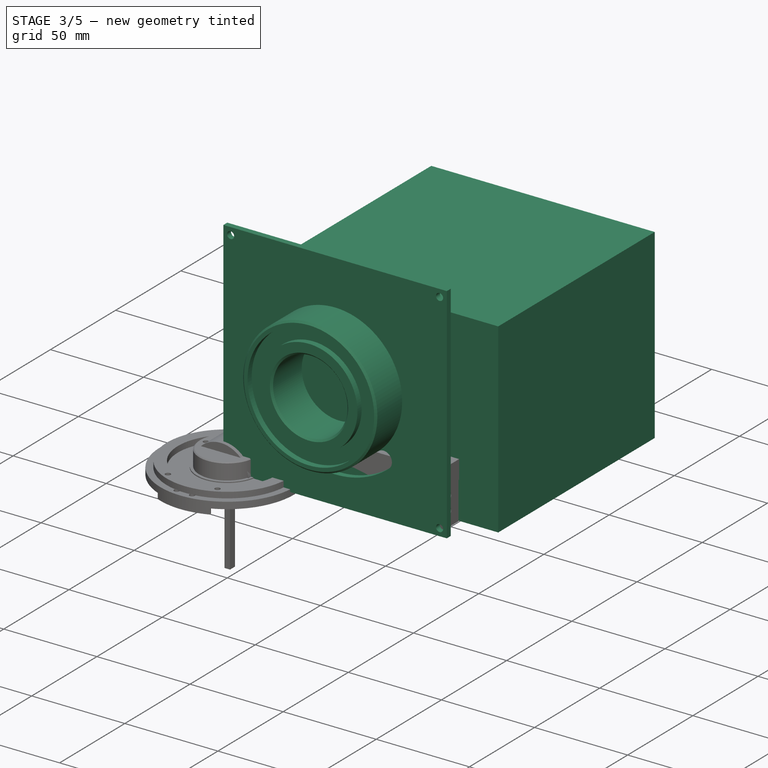
[diagram: stage 3 of 5 — iso view after this stage's code; geometry added in this stage tinted green]
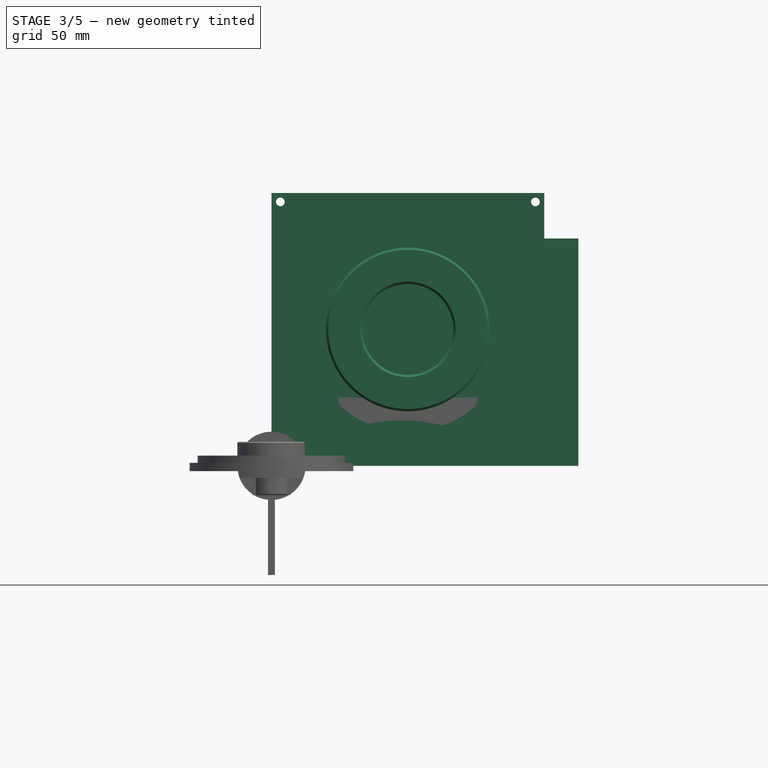
[diagram: stage 3 of 5 — front view after this stage's code; geometry added in this stage tinted green]
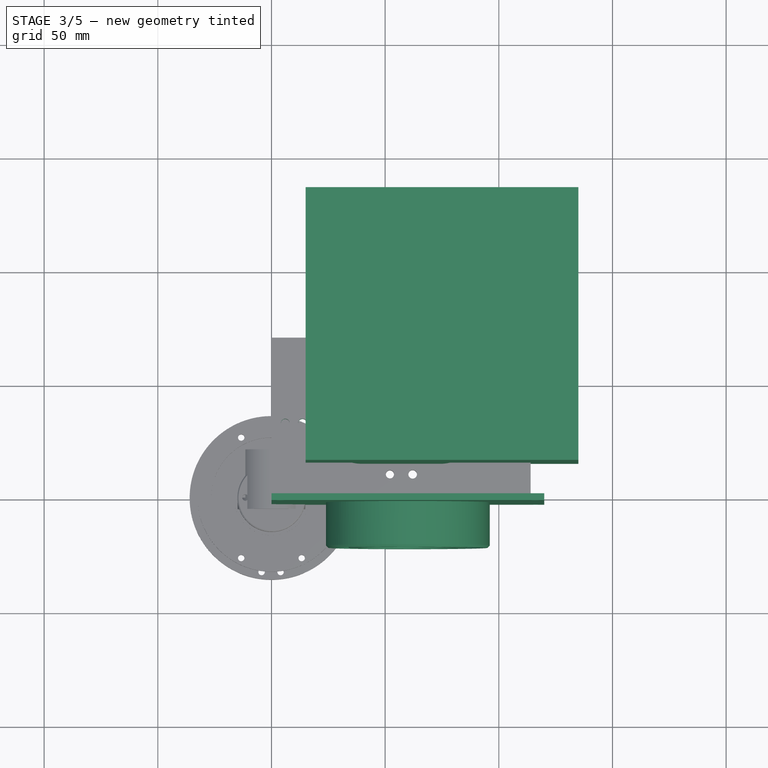
[diagram: stage 3 of 5 — top view after this stage's code; geometry added in this stage tinted green]
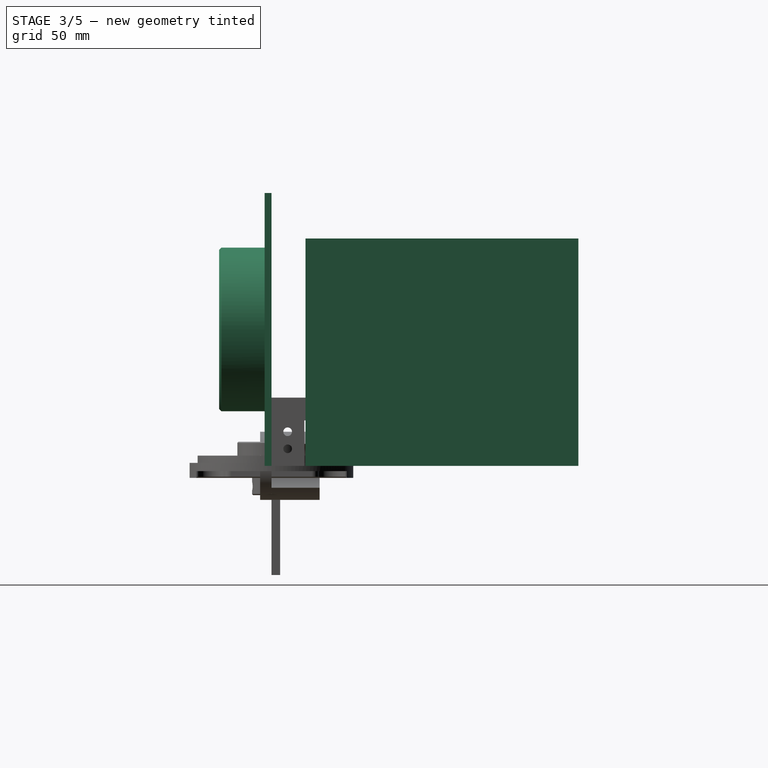
[diagram: stage 3 of 5 — right view after this stage's code; geometry added in this stage tinted green]
FEATURE [PartDesign::Body] Body  label="BaseFloor"
  Group = -> [Sketch,Pad,Sketch001,Pocket,Sketch002,Pocket001,Sketch003,Pocket002,Sketch004,Pad001,Sketch005,Pocket003,Sketch006,Pocket004]
  Origin = -> Origin
  Placement = pos=(0,0,-48) rot=(0,0,1;0rad)
  Tip = -> Pocket004
FEATURE [Sketcher::SketchObject] Sketch007
  MapMode = 5
  Support = -> [XY_Plane001]
  sketch-geometry (4):
    g0: LineSegment StartX=15 StartY=135 StartZ=0 EndX=135 EndY=135 EndZ=0
    g1: LineSegment StartX=15 StartY=135 StartZ=0 EndX=15 EndY=15 EndZ=0
    g2: LineSegment StartX=15 StartY=15 StartZ=0 EndX=135 EndY=15 EndZ=0
    g3: LineSegment StartX=135 StartY=15 StartZ=0 EndX=135 EndY=135 EndZ=0
  constraints (12):
    c: Horizontal(g0)
    c: Vertical(g1)
    c: Coincident(g2,g1)
    c: Horizontal(g2)
    c: Coincident(g3,g2)
    c: Coincident(g3,g0)
    c: Vertical(g3)
    c: Distance(g0) = 120
    c: Distance(g1) = 120
    c: Distance(g1,g-1) = 15
    c: Distance(g1,g-2) = 15
    c: Coincident(g0,g1)
FEATURE [PartDesign::Pad] Pad002
  Length = 100
  Length2 = 100
  Profile = -> Sketch007
  Type = 0
FEATURE [Part::Feature] Part__Feature131  label="b009"
  Placement = pos=(-2.6,19.44,-0.6) rot=(0,0,1;0rad)
  shape: bbox 3.247 x 3.247 x 24.91 mm, 35 faces (baked)
FEATURE [Part::Feature] Part__Feature132  label="Screw_3x010"
  Placement = pos=(62.7475,7.25547,-24.6) rot=(0,0,1;2.41757rad)
  shape: bbox 5.6 x 5.6 x 10.4 mm, 89 faces (baked)
FEATURE [Part::Feature] Part__Feature133  label="b010"
  Placement = pos=(-2.6,-16.06,-0.6) rot=(0,0,1;0rad)
  shape: bbox 3.247 x 3.247 x 24.91 mm, 35 faces (baked)
FEATURE [Part::Feature] Part__Feature134  label="b011"
  Placement = pos=(12.4,19.44,-0.6) rot=(0,0,1;0rad)
  shape: bbox 3.247 x 3.247 x 24.91 mm, 35 faces (baked)
FEATURE [Part::Feature] Part__Feature135  label="b012"
  Placement = pos=(12.4,-16.06,-0.6) rot=(0,0,1;0rad)
  shape: bbox 3.247 x 3.247 x 24.91 mm, 35 faces (baked)
FEATURE [App::Part] SCREW_1_7x026  label="SCREW-1.7x026"
  Group = -> [Part__Feature135,Part__Feature133,Part__Feature131,Part__Feature134]
  Origin = -> Origin023
  Placement = pos=(0,0,-2.6) rot=(0,0,1;0rad)
FEATURE [Part::Feature] Part__Feature136  label="Case004"
  shape: bbox 20.02 x 68.3 x 42.1 mm, 433 faces (baked)
FEATURE [App::Part] S3006_S148_U301PAA002  label="RightDemoMotor"
  Group = -> [Part__Feature132,SCREW_1_7x026,Part__Feature136]
  Origin = -> Origin024
  Placement = pos=(107.3,98.7,122.35) rot=(-0.707107,0,0.707107;3.14159rad)
FEATURE [App::DocumentObjectGroup] Group002  label="JointsSupports"
  Group = -> [Cutout,Part__Mirroring,S3006_S148_U301PAA001,S3006_S148_U301PAA002]
FEATURE [App::DocumentObjectGroup] Group001  label="UpperArm"
  Group = -> [Uarm_swift_pro_3D_________,Group002]
FEATURE [Sketcher::SketchObject] Sketch054
  MapMode = 5
  Placement = pos=(0,0,0) rot=(1,0,0;1.5708rad)
  Support = -> [XZ_Plane027]
  sketch-geometry (4):
    g0: LineSegment StartX=0 StartY=0 StartZ=0 EndX=120 EndY=0 EndZ=0
    g1: LineSegment StartX=0 StartY=0 StartZ=0 EndX=0 EndY=120 EndZ=0
    g2: LineSegment StartX=0 StartY=120 StartZ=0 EndX=120 EndY=120 EndZ=0
    g3: LineSegment StartX=120 StartY=120 StartZ=0 EndX=120 EndY=0 EndZ=0
  constraints (11):
    c: Coincident(g0,g-1)
    c: PointOnObject(g0,g-1)
    c: Coincident(g1,g0)
    c: Vertical(g1)
    c: Coincident(g2,g1)
    c: Horizontal(g2)
    c: Coincident(g3,g2)
    c: Coincident(g3,g0)
    c: Vertical(g3)
    c: DistanceX(g0,g0) = 120
    c: DistanceY(g1,g1) = 120
FEATURE [PartDesign::Pad] Pad015
  Length = 3
  Length2 = 100
  Placement = pos=(0,0,0) rot=(1,0,0;1.5708rad)
  Profile = -> Sketch054
  Type = 0
FEATURE [Sketcher::SketchObject] Sketch065
  ExternalGeometry = -> [Pad015]
  MapMode = 5
  Placement = pos=(0,-3,-7e-16) rot=(1,0,0;1.5708rad)
  Support = -> [Pad015]
  sketch-geometry (4):
    g0: Circle CenterX=3.9 CenterY=3.9 CenterZ=0 NormalX=0 NormalY=0 NormalZ=1 AngleXU=0 Radius=1.9
    g1: Circle CenterX=116.1 CenterY=3.9 CenterZ=0 NormalX=0 NormalY=0 NormalZ=1 AngleXU=0 Radius=1.9
    g2: Circle CenterX=116.1 CenterY=116.1 CenterZ=0 NormalX=0 NormalY=0 NormalZ=1 AngleXU=0 Radius=1.9
    g3: Circle CenterX=3.9 CenterY=116.1 CenterZ=0 NormalX=0 NormalY=0 NormalZ=1 AngleXU=0 Radius=1.9
  constraints (12):
    c: Distance(g0,g-1) = 3.9
    c: Distance(g0,g-2) = 3.9
    c: Radius(g0) = 1.9
    c: Distance(g1,g-1) = 3.9
    c: Distance(g1,g-3) = 3.9
    c: Radius(g1) = 1.9
    c: Radius(g2) = 1.9
    c: Distance(g2,g-3) = 3.9
    c: Distance(g2,g-4) = 3.9
    c: Radius(g3) = 1.9
    c: Distance(g3,g-4) = 3.9
    c: Distance(g3,g-2) = 3.9
FEATURE [PartDesign::Pocket] Pocket034
  BaseFeature = -> Pad015
  Length = 5
  Length2 = 100
  Placement = pos=(0,0,0) rot=(1,0,0;1.5708rad)
  Profile = -> Sketch065
  Type = 1
FEATURE [Sketcher::SketchObject] Sketch064
  ExternalGeometry = -> [Pocket034]
  MapMode = 5
  Placement = pos=(0,-3,-7e-16) rot=(1,0,0;1.5708rad)
  Support = -> [Pocket034]
  sketch-geometry (3):
    g0: Circle CenterX=60 CenterY=60 CenterZ=0 NormalX=0 NormalY=0 NormalZ=1 AngleXU=0 Radius=20
    g1: LineSegment [constr] StartX=0 StartY=120 StartZ=0 EndX=120 EndY=0 EndZ=0
    g2: LineSegment [constr] StartX=0 StartY=0 StartZ=0 EndX=120 EndY=120 EndZ=0
  constraints (7):
    c: Radius(g0) = 20
    c: Coincident(g1,g-3)
    c: Coincident(g1,g-4)
    c: Coincident(g2,g-1)
    c: Coincident(g2,g-4)
    c: PointOnObject(g0,g1)
    c: PointOnObject(g0,g2)
FEATURE [PartDesign::Pocket] Pocket036
  BaseFeature = -> Pocket034
  Length = 5
  Length2 = 100
  Placement = pos=(0,0,0) rot=(1,0,0;1.5708rad)
  Profile = -> Sketch064
  Type = 1
FEATURE [Sketcher::SketchObject] Sketch058
  ExternalGeometry = -> [Pocket036]
  MapMode = 5
  Placement = pos=(0,-3,-7e-16) rot=(1,0,0;1.5708rad)
  Support = -> [Pocket036]
  sketch-geometry (1):
    g0: Circle CenterX=60 CenterY=60 CenterZ=0 NormalX=0 NormalY=0 NormalZ=1 AngleXU=0 Radius=36
  constraints (2):
    c: Coincident(g0,g-3)
    c: Radius(g0) = 36
FEATURE [PartDesign::Pad] Pad013
  BaseFeature = -> Pocket036
  Length = 20
  Length2 = 100
  Placement = pos=(0,0,0) rot=(1,0,0;1.5708rad)
  Profile = -> Sketch058
  Type = 0
FEATURE [Sketcher::SketchObject] Sketch055
  ExternalGeometry = -> [Pad013]
  MapMode = 5
  Placement = pos=(0,-3,-7e-16) rot=(-1,0,0;1.5708rad)
  Support = -> [Pad013]
  sketch-geometry (1):
    g0: Circle CenterX=60 CenterY=-60 CenterZ=0 NormalX=0 NormalY=0 NormalZ=1 AngleXU=0 Radius=20
  constraints (2):
    c: Coincident(g0,g-3)
    c: Radius(g0) = 20
FEATURE [PartDesign::Pocket] Pocket035
  BaseFeature = -> Pad013
  Length = 5
  Length2 = 100
  Placement = pos=(0,0,0) rot=(1,0,0;1.5708rad)
  Profile = -> Sketch055
  Type = 1
FEATURE [Sketcher::SketchObject] Sketch057
  MapMode = 5
  Placement = pos=(0,-23,-5.3e-15) rot=(1,0,0;1.5708rad)
  Support = -> [Pocket035]
FEATURE [Sketcher::SketchObject] Sketch056
  ExternalGeometry = -> [Pocket035]
  MapMode = 5
  Placement = pos=(0,-23,-5.3e-15) rot=(1,0,0;1.5708rad)
  Support = -> [Pocket035]
  sketch-geometry (2):
    g0: Circle CenterX=60 CenterY=60 CenterZ=0 NormalX=0 NormalY=0 NormalZ=1 AngleXU=0 Radius=33
    g1: Circle CenterX=60 CenterY=60 CenterZ=0 NormalX=0 NormalY=0 NormalZ=1 AngleXU=0 Radius=26
  constraints (4):
    c: Coincident(g0,g-4)
    c: Radius(g0) = 33
    c: Coincident(g1,g0)
    c: Radius(g1) = 26
FEATURE [PartDesign::Pocket] Pocket037
  BaseFeature = -> Pocket035
  Length = 3.2
  Length2 = 100
  Placement = pos=(0,0,0) rot=(1,0,0;1.5708rad)
  Profile = -> Sketch056
  Type = 0
FEATURE [PartDesign::Chamfer] Chamfer003
  Base = -> Pocket037 [Edge32]
  BaseFeature = -> Pocket037
  Placement = pos=(0,0,0) rot=(1,0,0;1.5708rad)
  Size = 1
FEATURE [PartDesign::Chamfer] Chamfer002
  Base = -> Chamfer003 [Edge40]
  BaseFeature = -> Chamfer003
  Placement = pos=(0,0,0) rot=(1,0,0;1.5708rad)
  Size = 1
FEATURE [Sketcher::SketchObject] Sketch066
  ExternalGeometry = -> [Chamfer002]
  MapMode = 5
  Placement = pos=(0,-3,-7e-16) rot=(1,0,0;1.5708rad)
  Support = -> [Chamfer002]
  sketch-geometry (13):
    g0: LineSegment [constr] StartX=60 StartY=60 StartZ=0 EndX=36.8596 EndY=32.4224 EndZ=0
    g1: LineSegment [constr] StartX=60 StartY=60 StartZ=0 EndX=83.1404 EndY=32.4224 EndZ=0
    g2: LineSegment [constr] StartX=60 StartY=60 StartZ=0 EndX=60 EndY=15 EndZ=0
    g3: ArcOfCircle CenterX=60 CenterY=60 CenterZ=0 NormalX=0 NormalY=0 NormalZ=1 AngleXU=0 Radius=36 StartAngle=4.01426 EndAngle=5.41052
    g4: GeomPoint X=60 Y=24 Z=0
    g5: Circle [constr] CenterX=60 CenterY=60 CenterZ=0 NormalX=0 NormalY=0 NormalZ=1 AngleXU=0 Radius=45
    g6: LineSegment [constr] StartX=60 StartY=60 StartZ=0 EndX=31.0746 EndY=25.528 EndZ=0
    g7: LineSegment [constr] StartX=60 StartY=60 StartZ=0 EndX=88.9255 EndY=25.528 EndZ=0
    g8: ArcOfCircle CenterX=60 CenterY=60 CenterZ=0 NormalX=0 NormalY=0 NormalZ=1 AngleXU=0 Radius=45 StartAngle=4.01426 EndAngle=5.41052
    g9: GeomPoint X=33.9671 Y=28.9752 Z=0
    g10: ArcOfCircle CenterX=33.9671 CenterY=28.9752 CenterZ=0 NormalX=0 NormalY=0 NormalZ=1 AngleXU=0 Radius=4.5 StartAngle=0.872668 EndAngle=4.01426
    g11: GeomPoint X=86.0329 Y=28.9752 Z=0
    g12: ArcOfCircle CenterX=86.0329 CenterY=28.9752 CenterZ=0 NormalX=0 NormalY=0 NormalZ=1 AngleXU=0 Radius=4.5 StartAngle=5.41052 EndAngle=8.55212
  constraints (31):
    c: Coincident(g0,g-3)
    c: PointOnObject(g0,g-3)
    c: Coincident(g1,g0)
    c: Angle(g0,g1) = 1.39626
    c: Vertical(g2)
    c: Angle(g2,g1) = 0.698132
    c: Coincident(g3,g0)
    c: Coincident(g3,g0)
    c: Coincident(g3,g1)
    c: Coincident(g2,g3)
    c: PointOnObject(g4,g2)
    c: PointOnObject(g4,g3)
    c: Coincident(g5,g3)
    c: Radius(g5) = 45
    c: Coincident(g6,g3)
    c: PointOnObject(g6,g5)
    c: Coincident(g7,g3)
    c: Angle(g6,g7) = 1.39626
    c: Coincident(g8,g3)
    c: Coincident(g8,g6)
    c: Coincident(g8,g7)
    c: PointOnObject(g9,g6)
    c: Distance(g9,g3) = 4.5
    c: Coincident(g10,g9)
    c: Coincident(g10,g8)
    c: Coincident(g10,g3)
    c: PointOnObject(g11,g7)
    c: Coincident(g12,g11)
    c: Coincident(g12,g8)
    c: Coincident(g12,g3)
    c: PointOnObject(g2,g8)
FEATURE [PartDesign::Pocket] Pocket042
  BaseFeature = -> Chamfer002
  Length = 5
  Length2 = 100
  Placement = pos=(0,0,0) rot=(1,0,0;1.5708rad)
  Profile = -> Sketch066
  Type = 1
FEATURE [PartDesign::Plane] DatumPlane003
  AttachmentOffset = pos=(0,0,-20) rot=(0,0,1;0rad)
  Length = 91.3137
  MapMode = 5
  Placement = pos=(20,0,0) rot=(0.57735,-0.57735,-0.57735;2.0944rad)
  ResizeMode = 0
  Support = -> [Pocket048]
  Width = 51.3137
FEATURE [Sketcher::SketchObject] Sketch074
  MapMode = 5
  Placement = pos=(20,0,0) rot=(0.57735,-0.57735,-0.57735;2.0944rad)
  Support = -> [DatumPlane003]
  sketch-geometry (2):
    g0: Circle CenterX=-62.88 CenterY=15 CenterZ=0 NormalX=0 NormalY=0 NormalZ=1 AngleXU=0 Radius=4.5
    g1: Circle CenterX=-7.12 CenterY=15 CenterZ=0 NormalX=0 NormalY=0 NormalZ=1 AngleXU=0 Radius=4.5
FEATURE [PartDesign::Pocket] Pocket049
  BaseFeature = -> Pocket048
  Length = 29
  Length2 = 100
  Profile = -> Sketch074
  Type = 0
FEATURE [Sketcher::SketchObject] Sketch075
  ExternalGeometry = -> [Pocket049]
  MapMode = 5
  Placement = pos=(0,0,30) rot=(0,0,1;0rad)
  Support = -> [Pocket049]
  sketch-geometry (4):
    g0: Circle CenterX=100.35 CenterY=32.44 CenterZ=0 NormalX=0 NormalY=0 NormalZ=1 AngleXU=0 Radius=1.9
    g1: Circle CenterX=107.95 CenterY=32.44 CenterZ=0 NormalX=0 NormalY=0 NormalZ=1 AngleXU=0 Radius=1.9
    g2: Circle CenterX=6.05 CenterY=32.44 CenterZ=0 NormalX=0 NormalY=0 NormalZ=1 AngleXU=0 Radius=1.9
    g3: Circle CenterX=13.65 CenterY=32.44 CenterZ=0 NormalX=0 NormalY=0 NormalZ=1 AngleXU=0 Radius=1.9
  constraints (6):
    c: Distance(g1,g0) = 7.6
    c: Radius(g1) = 1.9
    c: Radius(g0) = 1.9
    c: Radius(g2) = 1.9
    c: Radius(g3) = 1.9
    c: Distance(g2,g3) = 7.6
FEATURE [PartDesign::Pocket] Pocket050
  BaseFeature = -> Pocket049
  Length = 5
  Length2 = 100
  Profile = -> Sketch075
  Type = 1
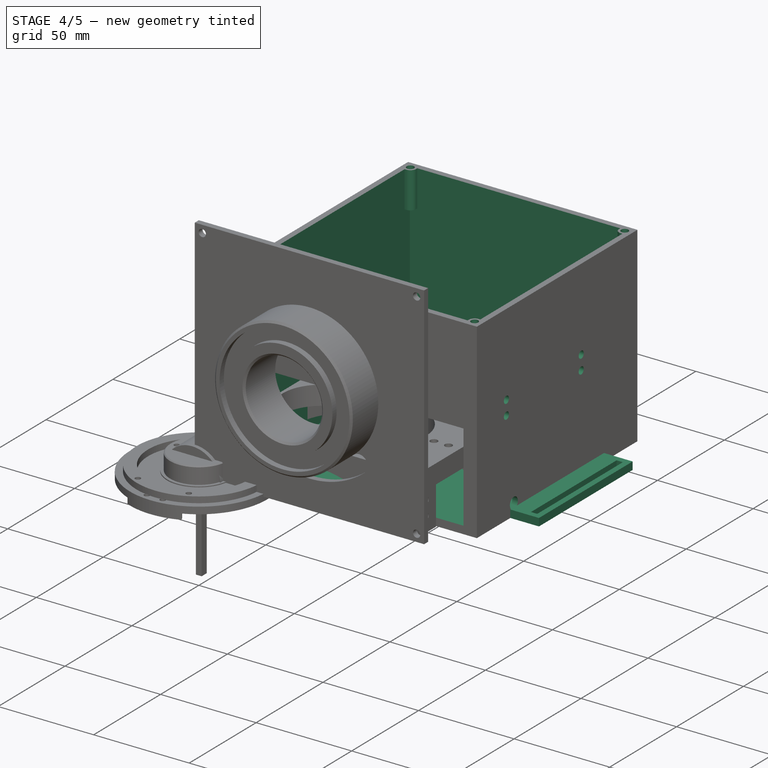
[diagram: stage 4 of 5 — iso view after this stage's code; geometry added in this stage tinted green]
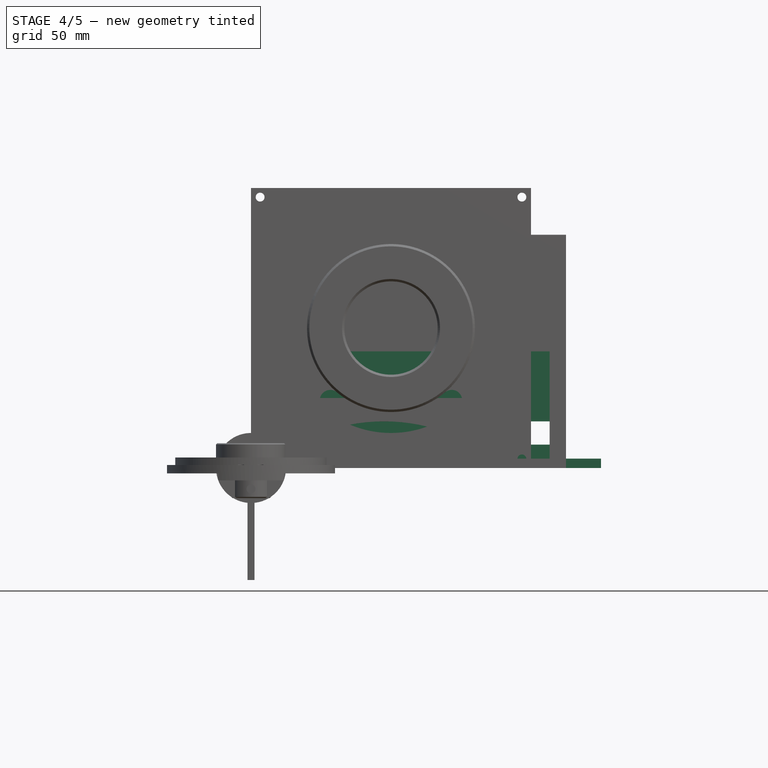
[diagram: stage 4 of 5 — front view after this stage's code; geometry added in this stage tinted green]
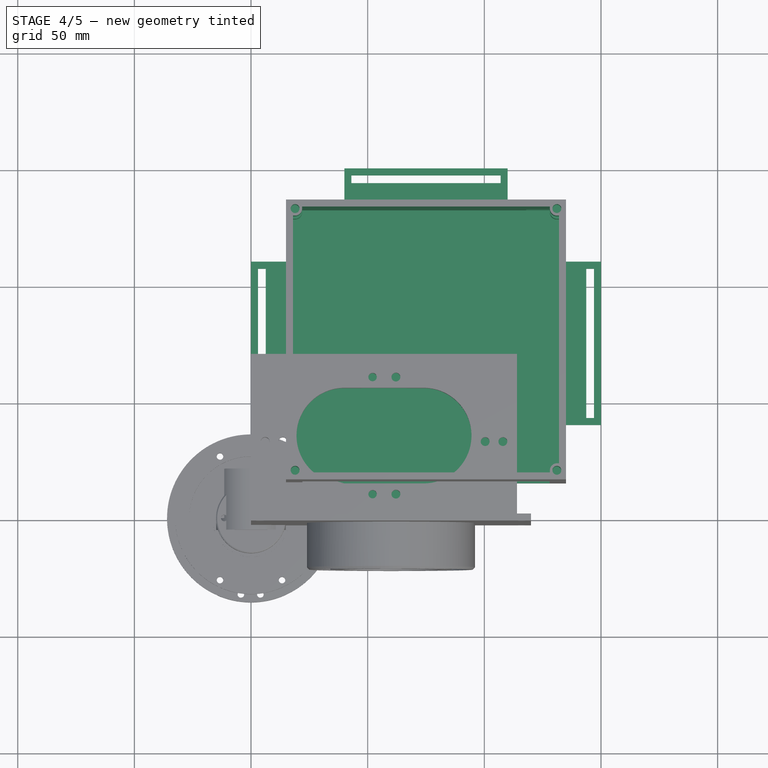
[diagram: stage 4 of 5 — top view after this stage's code; geometry added in this stage tinted green]
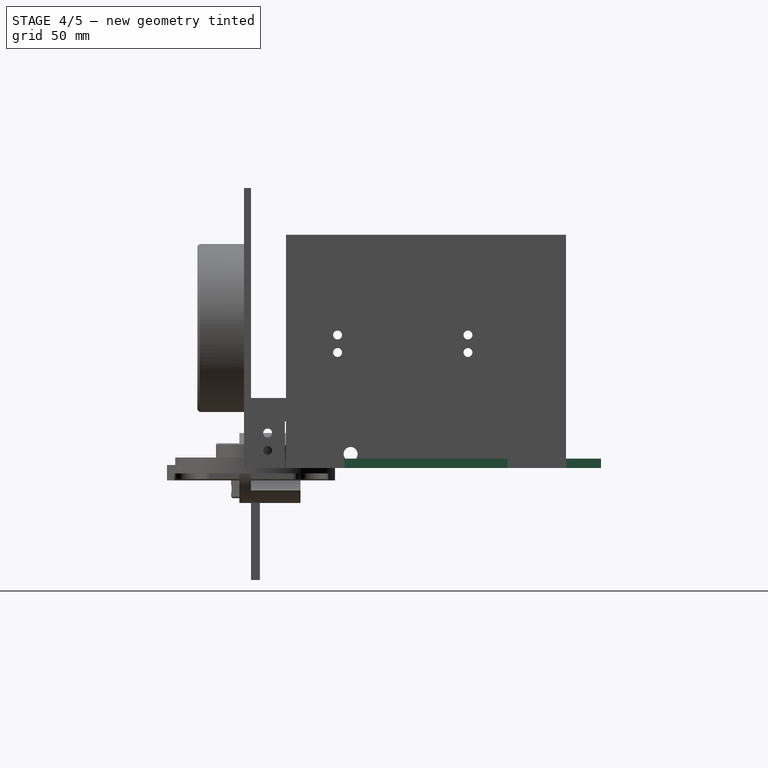
[diagram: stage 4 of 5 — right view after this stage's code; geometry added in this stage tinted green]
FEATURE [Part::Feature] Part__Feature001  label="س²ၬ¸ɀ"
  Placement = pos=(126.597,220.933,-104.204) rot=(0.80045,0.5994,0;3.14159rad)
  shape: bbox 52.46 x 148.8 x 2 mm, 57 faces (baked)
FEATURE [Part::Feature] Part__Feature002  label="MF84"
  Placement = pos=(106.615,152.803,-105.804) rot=(0.591897,-0.547099,0.591897;2.14037rad)
  shape: bbox 9.2 x 9.2 x 3.5 mm, 12 faces (baked)
FEATURE [Part::Feature] Part__Feature003  label="MF085"
  Placement = pos=(146.579,289.064,-102.604) rot=(-0.540406,0.64492,0.540406;1.996rad)
  shape: bbox 9.2 x 9.2 x 3.5 mm, 12 faces (baked)
FEATURE [Part::Feature] Part__Feature004  label="MF086"
  Placement = pos=(84.4475,299.488,-102.604) rot=(0.584085,-0.563639,-0.584085;4.1681rad)
  shape: bbox 9.2 x 9.2 x 3.5 mm, 12 faces (baked)
FEATURE [Part::Feature] Part__Feature005  label="MF087"
  Placement = pos=(-64.036,243.184,-102.604) rot=(0.641516,-0.420611,-0.641516;3.93789rad)
  shape: bbox 9.2 x 9.2 x 3.5 mm, 12 faces (baked)
FEATURE [Part::Feature] Part__Feature006  label="MF088"
  Placement = pos=(155.465,285.674,-136.004) rot=(-0.180417,-0.966902,-0.180417;1.60445rad)
  shape: bbox 9.2 x 9.2 x 3.5 mm, 12 faces (baked)
FEATURE [Part::Feature] Part__Feature007  label="ɽ½Ȑρ¬¸ɀ"
  Placement = pos=(115.513,294.276,-107.104) rot=(0,0,1;1.40457rad)
  shape: bbox 74.63 x 39.54 x 2 mm, 80 faces (baked)
FEATURE [Part::Feature] Part__Feature008  label="ĩ¶́¬¸ɀ"
  Placement = pos=(10.2057,271.336,-104.204) rot=(-0.180229,0.983625,0;3.14159rad)
  shape: bbox 161 x 68.8 x 2 mm, 33 faces (baked)
FEATURE [Part::Feature] Part__Feature009  label="右侧曲柄"
  Placement = pos=(71.9146,136.103,-132.004) rot=(0,0,-1;1.2748rad)
  shape: bbox 56.25 x 25.93 x 9.8 mm, 61 faces (baked)
FEATURE [Part::Feature] Part__Feature010  label="Ԓ²ၬ¸ɀ"
  Placement = pos=(135.498,217.539,-134.404) rot=(0,0,-1;1.85586rad)
  shape: bbox 52.43 x 148.8 x 2 mm, 27 faces (baked)
FEATURE [Part::Feature] Part__Feature011  label="MF089"
  Placement = pos=(111.851,272.445,-105.504) rot=(-0.699963,-0.141783,0.699963;3.42328rad)
  shape: bbox 9.2 x 9.2 x 3.5 mm, 12 faces (baked)
FEATURE [Part::Feature] Part__Feature012  label="<unrecoverable-encoding: 9 bytes d7b7b1dbb9d8bdd8b1>"
  Placement = pos=(87.482,183.617,-119.904) rot=(0.506093,-0.698383,0.506093;1.92231rad)
  shape: bbox 62.44 x 159.7 x 15 mm, 100 faces (baked)
FEATURE [Part::Feature] Part__Feature013  label="<unrecoverable-encoding: 9 bytes d7b7b1dbb9d8bdd8b2>"
  Placement = pos=(32.2408,250.552,-119.954) rot=(0.2238,-0.948592,0.2238;1.62355rad)
  shape: bbox 178.5 x 95.21 x 15 mm, 123 faces (baked)
FEATURE [Part::Feature] Part__Feature014  label="电机轴承支撑座（左侧）"
  Placement = pos=(71.9146,136.103,-112.404) rot=(0,0,1;0.433871rad)
  shape: bbox 31 x 31 x 12.8 mm, 30 faces (baked)
FEATURE [Part::Feature] Part__Feature015  label="½Á´"
  Placement = pos=(106.263,283.627,-119.954) rot=(0.948592,0.2238,0.2238;1.62355rad)
  shape: bbox 76.03 x 34.74 x 10.8 mm, 107 faces (baked)
FEATURE [Part::Feature] Part__Feature016  label="MF090"
  Placement = pos=(111.851,272.445,-128.004) rot=(-0.559401,-0.61167,-0.559401;2.04368rad)
  shape: bbox 9.2 x 9.2 x 3.5 mm, 12 faces (baked)
FEATURE [Part::Feature] Part__Feature017  label="MF091"
  Placement = pos=(111.851,272.445,-111.804) rot=(-0.207731,0.955874,0.207731;1.61591rad)
  shape: bbox 9.2 x 9.2 x 3.5 mm, 12 faces (baked)
FEATURE [Part::Feature] Part__Feature018  label="M4X7 ƽͷÝ˿"
  Placement = pos=(111.851,272.445,-128.004) rot=(-0.087495,-0.992315,-0.087495;1.57851rad)
  shape: bbox 6.8 x 6.8 x 8.3 mm, 28 faces (baked)
FEATURE [Part::Feature] Part__Feature019  label="M4X7 ƽͷÝ˿001"
  Placement = pos=(146.579,289.064,-102.604) rot=(0.549409,0.629524,-0.549409;2.0179rad)
  shape: bbox 6.8 x 6.8 x 8.3 mm, 28 faces (baked)
FEATURE [Part::Feature] Part__Feature020  label="M3X5 ƽͷÝ˿"
  Placement = pos=(100,276.026,-119.954) rot=(0.252201,0.40795,0.87748;2.1475rad)
  shape: bbox 6.349 x 7.401 x 4.9 mm, 28 faces (baked)
FEATURE [Part::Feature] Part__Feature021  label="电机轴承支撑座（右侧）"
  Placement = pos=(71.9146,136.103,-127.404) rot=(-0.215238,0.976562,0;3.14159rad)
  shape: bbox 30 x 30 x 16.6 mm, 33 faces (baked)
FEATURE [Part::Feature] Part__Feature041  label="M4X10 ƽͷÝ˿"
  Placement = pos=(-64.036,243.184,-102.604) rot=(0.531098,0.660204,-0.531098;1.97456rad)
  shape: bbox 6.8 x 6.8 x 11.5 mm, 28 faces (baked)
FEATURE [Part::Feature] Part__Feature042  label="M3X4 Ś¹½Ȕ²ͷÝ˿"
  Placement = pos=(66.8699,146.992,-133.704) rot=(0,0,-1;0.015618rad)
  shape: bbox 5.8 x 5.8 x 7.1 mm, 14 faces (baked)
FEATURE [Part::Feature] Part__Feature043  label="M3X5 ƽͷÝ˿005"
  Placement = pos=(91.0549,271.556,-119.954) rot=(0.252201,0.40795,0.87748;2.1475rad)
  shape: bbox 6.349 x 7.401 x 4.9 mm, 28 faces (baked)
FEATURE [Part::Feature] Part__Feature044  label="M4X15 ƽͷÝ˿"
  Placement = pos=(155.465,285.674,-136.004) rot=(0,-1,0;1.5708rad)
  shape: bbox 6.8 x 6.8 x 16.5 mm, 28 faces (baked)
FEATURE [Part::Feature] Part__Feature045  label="M3X5 ƽͷÝ˿006"
  Placement = pos=(76.9592,125.215,-128.604) rot=(0.160812,-0.973796,0.160812;1.59735rad)
  shape: bbox 4.9 x 4.9 x 6.3 mm, 28 faces (baked)
FEATURE [Part::Feature] Part__Feature046  label="M3X5 ƽͷÝ˿007"
  Placement = pos=(76.9592,125.215,-110.904) rot=(-0.381483,0.841987,0.381483;1.74195rad)
  shape: bbox 4.9 x 4.9 x 6.3 mm, 28 faces (baked)
FEATURE [Part::Feature] Part__Feature047  label="3.2X7X10 <unrecoverable-encoding: 5 bytes c5a1bad7b9>"
  Placement = pos=(76.9592,125.215,-120.204) rot=(0,0,1;3.79427rad)
  shape: bbox 7 x 7 x 10 mm, 6 faces (baked)
FEATURE [Part::Feature] Part__Feature048  label="M3X5 ƽͷÝ˿008"
  Placement = pos=(66.8699,146.992,-110.904) rot=(0.649438,-0.39555,-0.649438;3.89492rad)
  shape: bbox 4.9 x 4.9 x 6.3 mm, 28 faces (baked)
FEATURE [Part::Feature] Part__Feature049  label="MF092"
  Placement = pos=(115.532,149.405,-136.004) rot=(-0.383766,-0.839909,-0.383766;1.74438rad)
  shape: bbox 9.2 x 9.2 x 3.5 mm, 12 faces (baked)
FEATURE [Part::Feature] Part__Feature051  label="7mm 支撑柱"
  Placement = pos=(155.465,285.674,-132.354) rot=(0.210867,0.691207,0.691207;2.72595rad)
  shape: bbox 7 x 7 x 7 mm, 6 faces (baked)
FEATURE [Part::Feature] Part__Feature076  label="M4X5 ¶¥˿ "
  Placement = pos=(73.6647,130.364,-134.504) rot=(0.903249,0.409511,-0.128229;1.58752rad)
  shape: bbox 4.918 x 5.599 x 3.8 mm, 13 faces (baked)
FEATURE [Part::Feature] Part__Feature077  label="M4X5 ¶¥˿ 001"
  Placement = pos=(66.4705,133.581,-106.904) rot=(-0.033718,-0.910034,0.413159;1.77812rad)
  shape: bbox 5.714 x 5.298 x 3.8 mm, 13 faces (baked)
FEATURE [Part::Feature] Part__Feature086  label="ǰ¶˹ؽ؀"
  Placement = pos=(-58.6299,231.648,-119.954) rot=(-0.000298,-1,-0.000298;1.5708rad)
  shape: bbox 51.01 x 42.55 x 20 mm, 84 faces (baked)
FEATURE [Part::Feature] Part__Feature087  label="M4X7 ƽͷÝ˿004"
  Placement = pos=(-36.6392,216.135,-130.554) rot=(-0.087495,-0.992315,-0.087495;1.57851rad)
  shape: bbox 6.8 x 6.8 x 8.3 mm, 28 faces (baked)
FEATURE [Part::Feature] Part__Feature088  label="MF093"
  Placement = pos=(-36.6392,216.135,-130.554) rot=(0.682868,0.259584,0.682868;3.64955rad)
  shape: bbox 9.2 x 9.2 x 3.5 mm, 12 faces (baked)
FEATURE [Part::Feature] Part__Feature089  label="MF094"
  Placement = pos=(-36.6392,216.135,-109.354) rot=(0.610252,0.505157,-0.610252;2.20606rad)
  shape: bbox 9.2 x 9.2 x 3.5 mm, 12 faces (baked)
FEATURE [Part::Feature] Part__Feature090  label="M4X7 ƽͷÝ˿005"
  Placement = pos=(-36.6392,216.135,-109.354) rot=(0.690942,-0.2126,-0.690942;3.56055rad)
  shape: bbox 6.8 x 6.8 x 8.3 mm, 28 faces (baked)
FEATURE [Part::Feature] Part__Feature091  label="前端通用件"
  Placement = pos=(-59.5544,190.649,-119.954) rot=(0.000298,1,0;3.14159rad)
  shape: bbox 29.4 x 19.51 x 15.8 mm, 97 faces (baked)
FEATURE [Part::Feature] Part__Feature092  label="L型连接件（一体化）"
  Placement = pos=(85.1146,121.403,-126.204) rot=(0,1,0;1.5708rad)
  shape: bbox 65 x 20 x 14 mm, 82 faces (baked)
FEATURE [Part::Feature] Part__Feature093  label="M4X6 ³·Ý˿"
  Placement = pos=(106.615,119.403,-138.204) rot=(1,0,0;1.5708rad)
  shape: bbox 6.3 x 6.3 x 6 mm, 21 faces (baked)
FEATURE [Part::Feature] Part__Feature094  label="L型连接件（一体化）001"
  Placement = pos=(85.1146,121.403,-113.604) rot=(0,-1,0;1.5708rad)
  shape: bbox 65 x 20 x 14 mm, 82 faces (baked)
FEATURE [Part::Feature] Part__Feature095  label="M4X5 ¶¥˿ 002"
  Placement = pos=(66.1516,134.346,-134.504) rot=(0.673414,-0.562097,-0.480168;1.87512rad)
  shape: bbox 5.599 x 4.918 x 3.8 mm, 13 faces (baked)
FEATURE [Part::Feature] Part__Feature096  label="M4X5 ¶¥˿ 003"
  Placement = pos=(90.6146,113.103,-119.904) rot=(0.564863,0.601547,0.564863;2.05848rad)
  shape: bbox 5 x 3.8 x 3.8 mm, 13 faces (baked)
FEATURE [Part::Feature] Part__Feature097  label="三角形连杆轴承压紧件"
  Placement = pos=(111.85,272.442,-106.104) rot=(0,0,-1;0.166228rad)
  shape: bbox 23.27 x 15.03 x 3 mm, 50 faces (baked)
FEATURE [Part::Feature] Part__Feature098  label="M3X5 ƽͷÝ˿034"
  Placement = pos=(104.37,277.72,-108.104) rot=(0.443595,-0.778747,0.443595;1.8183rad)
  shape: bbox 4.9 x 4.9 x 6.3 mm, 28 faces (baked)
FEATURE [Part::Feature] Part__Feature099  label="M3X5 ƽͷÝ˿035"
  Placement = pos=(-60.8436,208.649,-115.554) rot=(0.294166,-0.294341,-0.909302;1.66633rad)
  shape: bbox 4.901 x 6.302 x 4.9 mm, 28 faces (baked)
FEATURE [Part::Feature] Part__Feature100  label="M3X5 ƽͷÝ˿036"
  Placement = pos=(-72.1436,208.656,-115.554) rot=(0.294166,-0.294341,-0.909302;1.66633rad)
  shape: bbox 4.901 x 6.302 x 4.9 mm, 28 faces (baked)
FEATURE [Part::Feature] Part__Feature101  label="3mm 支撑柱"
  Placement = pos=(111.851,272.445,-109.004) rot=(-1,0.000156,-0.000156;1.5708rad)
  shape: bbox 7 x 7 x 2.9 mm, 6 faces (baked)
FEATURE [Part::Feature] Part__Feature102  label="4mm 支撑柱"
  Placement = pos=(-64.036,243.184,-106.104) rot=(-0.998943,0.032496,-0.032496;1.57185rad)
  shape: bbox 7 x 7 x 3.85 mm, 6 faces (baked)
FEATURE [Part::Feature] Part__Feature103  label="M4X6 ³·Ý˿001"
  Placement = pos=(111.615,109.403,-133.204) rot=(0,0,1;0rad)
  shape: bbox 6.3 x 6 x 6.3 mm, 21 faces (baked)
FEATURE [Part::Feature] Part__Feature104  label="M4X6 ³·Ý˿002"
  Placement = pos=(58.6146,109.403,-133.204) rot=(0,0,1;0rad)
  shape: bbox 6.3 x 6 x 6.3 mm, 21 faces (baked)
FEATURE [Part::Feature] Part__Feature105  label="M4X6 ³·Ý˿003"
  Placement = pos=(63.6146,119.403,-138.204) rot=(1,0,0;1.5708rad)
  shape: bbox 6.3 x 6.3 x 6 mm, 21 faces (baked)
FEATURE [Part::Feature] Part__Feature106  label="M4X6 ³·Ý˿004"
  Placement = pos=(58.6146,109.403,-106.604) rot=(0,0,1;0rad)
  shape: bbox 6.3 x 6 x 6.3 mm, 21 faces (baked)
FEATURE [Part::Feature] Part__Feature107  label="M4X15 ƽͷÝ˿001"
  Placement = pos=(111.851,272.445,-105.504) rot=(-0.570775,0.590281,0.570775;2.07511rad)
  shape: bbox 6.8 x 6.8 x 16.5 mm, 28 faces (baked)
FEATURE [Part::Feature] Part__Feature108  label="4mm 支撑柱001"
  Placement = pos=(106.615,152.803,-98.454) rot=(-0.999823,-0.013315,0.013315;1.57097rad)
  shape: bbox 7 x 7 x 3.85 mm, 6 faces (baked)
FEATURE [Part::Feature] Part__Feature109  label="M4X10 ƽͷÝ˿001"
  Placement = pos=(106.615,152.803,-105.804) rot=(0,-1,0;1.5708rad)
  shape: bbox 6.8 x 6.8 x 11.5 mm, 28 faces (baked)
FEATURE [Part::Feature] Part__Feature110  label="M4X7 ƽͷÝ˿006"
  Placement = pos=(84.4475,299.488,-102.604) rot=(0.549409,0.629524,-0.549409;2.0179rad)
  shape: bbox 6.8 x 6.8 x 8.3 mm, 28 faces (baked)
FEATURE [Part::Feature] Part__Feature111  label="M4X7 ƽͷÝ˿007"
  Placement = pos=(115.532,149.405,-136.004) rot=(0.620868,-0.478587,0.620868;2.24885rad)
  shape: bbox 6.8 x 6.8 x 8.3 mm, 28 faces (baked)
FEATURE [Part::Feature] Part__Feature112  label="M4X6 ³·Ý˿005"
  Placement = pos=(63.6146,119.403,-101.604) rot=(-0.139423,0.7002,-0.7002;2.86453rad)
  shape: bbox 6.3 x 6.3 x 6 mm, 21 faces (baked)
FEATURE [Part::Feature] Part__Feature113  label="M4X6 ³·Ý˿006"
  Placement = pos=(106.615,119.403,-101.604) rot=(-0.139423,0.7002,-0.7002;2.86453rad)
  shape: bbox 6.3 x 6.3 x 6 mm, 21 faces (baked)
FEATURE [Part::Feature] Part__Feature114  label="M4X6 ³·Ý˿007"
  Placement = pos=(111.615,109.403,-106.604) rot=(0,0,1;0rad)
  shape: bbox 6.3 x 6 x 6.3 mm, 21 faces (baked)
FEATURE [Part::Feature] Part__Feature115  label="M3X5 ƽͷÝ˿037"
  Placement = pos=(-72.1436,208.656,-124.354) rot=(0.294166,-0.294341,-0.909302;1.66633rad)
  shape: bbox 4.901 x 6.302 x 4.9 mm, 28 faces (baked)
FEATURE [Part::Feature] Part__Feature116  label="M3X5 ƽͷÝ˿038"
  Placement = pos=(-60.8436,208.649,-124.354) rot=(0.294166,-0.294341,-0.909302;1.66633rad)
  shape: bbox 4.901 x 6.302 x 4.9 mm, 28 faces (baked)
FEATURE [App::Part] Uarm_swift_pro_3D_________  label="uArmSP_Parts"
  Group = -> [Part__Feature001,Part__Feature002,Part__Feature003,Part__Feature004,Part__Feature005,Part__Feature006,Part__Feature007,Part__Feature008,Part__Feature009,Part__Feature010,Part__Feature011,Part__Feature012,Part__Feature013,Part__Feature014,Part__Feature015,Part__Feature016,Part__Feature017,Part__Feature018,Part__Feature019,Part__Feature020,Part__Feature021,Part__Feature041,Part__Feature042,+41 more]
  Origin = -> Origin006
  Placement = pos=(-45.1,160.4,-24.1) rot=(-0.57735,0.57735,0.57735;4.18879rad)
FEATURE [Part::Feature] Part__Feature117  label="b4"
  Placement = pos=(12.4,-16.06,-0.6) rot=(0,0,1;0rad)
  shape: bbox 3.247 x 3.247 x 24.91 mm, 35 faces (baked)
FEATURE [Part::Feature] Part__Feature118  label="b3"
  Placement = pos=(-2.6,-16.06,-0.6) rot=(0,0,1;0rad)
  shape: bbox 3.247 x 3.247 x 24.91 mm, 35 faces (baked)
FEATURE [Part::Feature] Part__Feature119  label="b2"
  Placement = pos=(-2.6,19.44,-0.6) rot=(0,0,1;0rad)
  shape: bbox 3.247 x 3.247 x 24.91 mm, 35 faces (baked)
FEATURE [Sketcher::SketchObject] Sketch
  MapMode = 5
  Support = -> [XY_Plane]
  sketch-geometry (4):
    g0: LineSegment StartX=0 StartY=0 StartZ=0 EndX=0 EndY=150 EndZ=0
    g1: LineSegment StartX=0 StartY=150 StartZ=0 EndX=150 EndY=150 EndZ=0
    g2: LineSegment StartX=150 StartY=150 StartZ=0 EndX=150 EndY=0 EndZ=0
    g3: LineSegment StartX=150 StartY=0 StartZ=0 EndX=0 EndY=0 EndZ=0
  constraints (11):
    c: Coincident(g0,g-1)
    c: PointOnObject(g0,g-2)
    c: Coincident(g1,g0)
    c: Horizontal(g1)
    c: Coincident(g2,g1)
    c: PointOnObject(g2,g-1)
    c: Vertical(g2)
    c: Coincident(g3,g2)
    c: Coincident(g3,g0)
    c: Distance(g3) = 150
    c: Distance(g0) = 150
FEATURE [PartDesign::Pad] Pad
  Length = 4
  Length2 = 100
  Profile = -> Sketch
  Type = 0
FEATURE [Part::Feature] Part__Feature120  label="b1"
  Placement = pos=(12.4,19.44,-0.6) rot=(0,0,1;0rad)
  shape: bbox 3.247 x 3.247 x 24.91 mm, 35 faces (baked)
FEATURE [App::Part] SCREW_1_7x24  label="SCREW-1.7x24"
  Group = -> [Part__Feature117,Part__Feature118,Part__Feature119,Part__Feature120]
  Origin = -> Origin010
  Placement = pos=(0,0,-2.6) rot=(0,0,1;0rad)
FEATURE [Sketcher::SketchObject] Sketch001
  ExternalGeometry = -> [Pad]
  MapMode = 5
  Placement = pos=(0,0,4) rot=(0,0,1;0rad)
  Support = -> [Pad]
  sketch-geometry (28):
    g0: LineSegment StartX=0 StartY=110 StartZ=0 EndX=15 EndY=110 EndZ=0
    g1: LineSegment StartX=15 StartY=110 StartZ=0 EndX=15 EndY=135 EndZ=0
    g2: LineSegment StartX=15 StartY=135 StartZ=0 EndX=40 EndY=135 EndZ=0
    g3: LineSegment StartX=40 StartY=135 StartZ=0 EndX=40 EndY=150 EndZ=0
    g4: LineSegment [constr] StartX=0 StartY=110 StartZ=0 EndX=0 EndY=40 EndZ=0
    g5: LineSegment StartX=0 StartY=40 StartZ=0 EndX=15 EndY=40 EndZ=0
    g6: LineSegment StartX=15 StartY=40 StartZ=0 EndX=15 EndY=15 EndZ=0
    g7: LineSegment StartX=15 StartY=15 StartZ=0 EndX=40 EndY=15 EndZ=0
    g8: LineSegment StartX=40 StartY=15 StartZ=0 EndX=40 EndY=0 EndZ=0
    g9: LineSegment [constr] StartX=40 StartY=150 StartZ=0 EndX=110 EndY=150 EndZ=0
    g10: LineSegment StartX=110 StartY=150 StartZ=0 EndX=110 EndY=135 EndZ=0
    g11: LineSegment StartX=110 StartY=135 StartZ=0 EndX=135 EndY=135 EndZ=0
    g12: LineSegment StartX=135 StartY=135 StartZ=0 EndX=135 EndY=110 EndZ=0
    g13: LineSegment StartX=135 StartY=110 StartZ=0 EndX=150 EndY=110 EndZ=0
    g14: LineSegment [constr] StartX=150 StartY=110 StartZ=0 EndX=150 EndY=40 EndZ=0
    g15: LineSegment StartX=150 StartY=40 StartZ=0 EndX=135 EndY=40 EndZ=0
    g16: LineSegment StartX=135 StartY=40 StartZ=0 EndX=135 EndY=15 EndZ=0
    g17: LineSegment StartX=135 StartY=15 StartZ=0 EndX=110 EndY=15 EndZ=0
    g18: LineSegment StartX=110 StartY=15 StartZ=0 EndX=110 EndY=0 EndZ=0
    g19: LineSegment [constr] StartX=110 StartY=0 StartZ=0 EndX=40 EndY=0 EndZ=0
    g20: LineSegment StartX=0 StartY=110 StartZ=0 EndX=0 EndY=150 EndZ=0
    g21: LineSegment StartX=0 StartY=150 StartZ=0 EndX=40 EndY=150 EndZ=0
    g22: LineSegment StartX=0 StartY=40 StartZ=0 EndX=0 EndY=0 EndZ=0
    g23: LineSegment StartX=0 StartY=0 StartZ=0 EndX=40 EndY=0 EndZ=0
    g24: LineSegment StartX=110 StartY=0 StartZ=0 EndX=150 EndY=0 EndZ=0
    g25: LineSegment StartX=150 StartY=0 StartZ=0 EndX=150 EndY=40 EndZ=0
    g26: LineSegment StartX=150 StartY=110 StartZ=0 EndX=150 EndY=150 EndZ=0
    g27: LineSegment StartX=150 StartY=150 StartZ=0 EndX=110 EndY=150 EndZ=0
  constraints (76):
    c: PointOnObject(g0,g-4)
    c: Horizontal(g0)
    c: Coincident(g1,g0)
    c: Vertical(g1)
    c: Coincident(g2,g1)
    c: Horizontal(g2)
    c: Coincident(g3,g2)
    c: PointOnObject(g3,g-3)
    c: Vertical(g3)
    c: Distance(g0) = 15
    c: Distance(g1) = 25
    c: Distance(g2) = 25
    c: Distance(g3) = 15
    c: Coincident(g4,g0)
    c: PointOnObject(g4,g-4)
    c: Coincident(g5,g4)
    c: Horizontal(g5)
    c: Coincident(g6,g5)
    c: Vertical(g6)
    c: Coincident(g7,g6)
    c: Horizontal(g7)
    c: Coincident(g8,g7)
    c: PointOnObject(g8,g-6)
    c: Vertical(g8)
    c: Distance(g4) = 70
    c: Distance(g5) = 15
    c: Distance(g7) = 25
    c: Distance(g6) = 25
    c: Coincident(g9,g3)
    c: PointOnObject(g9,g-3)
    c: Coincident(g10,g9)
    c: Vertical(g10)
    c: Coincident(g11,g10)
    c: Horizontal(g11)
    c: Coincident(g12,g11)
    c: Vertical(g12)
    c: Coincident(g13,g12)
    c: PointOnObject(g13,g-5)
    c: Horizontal(g13)
    c: Coincident(g14,g13)
    c: PointOnObject(g14,g-5)
    c: Coincident(g15,g14)
    c: Horizontal(g15)
    c: Coincident(g16,g15)
    c: Vertical(g16)
    c: Coincident(g17,g16)
    c: Horizontal(g17)
    c: Coincident(g18,g17)
    c: PointOnObject(g18,g-6)
    c: Vertical(g18)
    c: Coincident(g19,g18)
    c: Coincident(g19,g8)
    c: Distance(g19) = 70
    c: Distance(g9) = 70
    c: Distance(g10) = 15
    c: Distance(g13) = 15
    c: Distance(g15) = 15
    c: Distance(g18) = 15
    c: Distance(g14) = 70
    c: Distance(g12) = 25
    c: Coincident(g20,g0)
    c: Coincident(g20,g-4)
    c: Coincident(g21,g20)
    c: Coincident(g22,g4)
    c: Coincident(g22,g-1)
    c: Coincident(g23,g22)
    c: Coincident(g24,g18)
    c: Coincident(g24,g-6)
    c: Coincident(g25,g24)
    c: Coincident(g25,g14)
    c: Coincident(g26,g13)
    c: Coincident(g26,g-5)
    c: Coincident(g27,g26)
    c: Coincident(g27,g9)
    c: Coincident(g23,g8)
    c: Coincident(g21,g3)
FEATURE [PartDesign::Pocket] Pocket
  BaseFeature = -> Pad
  Length = 5
  Length2 = 100
  Profile = -> Sketch001
  Type = 1
FEATURE [Sketcher::SketchObject] Sketch002
  ExternalGeometry = -> [Pocket]
  MapMode = 5
  Placement = pos=(0,0,4) rot=(0,0,1;0rad)
  Support = -> [Pocket]
  sketch-geometry (20):
    g0: LineSegment StartX=3 StartY=107 StartZ=0 EndX=6.3 EndY=107 EndZ=0
    g1: LineSegment StartX=6.3 StartY=107 StartZ=0 EndX=6.3 EndY=43 EndZ=0
    g2: LineSegment StartX=6.3 StartY=43 StartZ=0 EndX=3 EndY=43 EndZ=0
    g3: LineSegment StartX=3 StartY=43 StartZ=0 EndX=3 EndY=107 EndZ=0
    g4: LineSegment StartX=43 StartY=147 StartZ=0 EndX=107 EndY=147 EndZ=0
    g5: LineSegment StartX=107 StartY=147 StartZ=0 EndX=107 EndY=143.7 EndZ=0
    g6: LineSegment StartX=107 StartY=143.7 StartZ=0 EndX=43 EndY=143.7 EndZ=0
    g7: LineSegment StartX=43 StartY=143.7 StartZ=0 EndX=43 EndY=147 EndZ=0
    g8: LineSegment StartX=143.7 StartY=107 StartZ=0 EndX=147 EndY=107 EndZ=0
    g9: LineSegment StartX=147 StartY=107 StartZ=0 EndX=147 EndY=43 EndZ=0
    g10: LineSegment StartX=147 StartY=43 StartZ=0 EndX=143.7 EndY=43 EndZ=0
    g11: LineSegment StartX=143.7 StartY=43 StartZ=0 EndX=143.7 EndY=107 EndZ=0
    g12: LineSegment StartX=43 StartY=6.3 StartZ=0 EndX=107 EndY=6.3 EndZ=0
    g13: LineSegment StartX=107 StartY=6.3 StartZ=0 EndX=107 EndY=3 EndZ=0
    g14: LineSegment StartX=107 StartY=3 StartZ=0 EndX=43 EndY=3 EndZ=0
    g15: LineSegment StartX=43 StartY=3 StartZ=0 EndX=43 EndY=6.3 EndZ=0
    g16: Circle CenterX=18.9 CenterY=131.1 CenterZ=0 NormalX=0 NormalY=0 NormalZ=1 AngleXU=0 Radius=1.9
    g17: Circle CenterX=131.1 CenterY=131.1 CenterZ=0 NormalX=0 NormalY=0 NormalZ=1 AngleXU=0 Radius=1.9
    g18: Circle CenterX=131.1 CenterY=18.9 CenterZ=0 NormalX=0 NormalY=0 NormalZ=1 AngleXU=0 Radius=1.9
    g19: Circle CenterX=18.9 CenterY=18.9 CenterZ=0 NormalX=0 NormalY=0 NormalZ=1 AngleXU=0 Radius=1.9
  constraints (60):
    c: Coincident(g0,g1)
    c: Coincident(g1,g2)
    c: Coincident(g2,g3)
    c: Coincident(g3,g0)
    c: Horizontal(g0)
    c: Horizontal(g2)
    c: Vertical(g1)
    c: Vertical(g3)
    c: Coincident(g4,g5)
    c: Coincident(g5,g6)
    c: Coincident(g6,g7)
    c: Coincident(g7,g4)
    c: Horizontal(g4)
    c: Horizontal(g6)
    c: Vertical(g5)
    c: Vertical(g7)
    c: Coincident(g8,g9)
    c: Coincident(g9,g10)
    c: Coincident(g10,g11)
    c: Coincident(g11,g8)
    c: Horizontal(g8)
    c: Horizontal(g10)
    c: Vertical(g9)
    c: Vertical(g11)
    c: Coincident(g12,g13)
    c: Coincident(g13,g14)
    c: Coincident(g14,g15)
    c: Coincident(g15,g12)
    c: Horizontal(g12)
    c: Horizontal(g14)
    c: Vertical(g13)
    c: Vertical(g15)
    c: Distance(g3) = 64
    c: DistanceY(g0,g-4) = 3
    c: DistanceX(g-4,g0) = 3
    c: DistanceX(g0,g0) = 3.3
    c: DistanceY(g5,g5) = 3.3
    c: DistanceY(g4,g-6) = 3
    c: DistanceX(g-6,g4) = 3
    c: Distance(g6) = 64
    c: Distance(g11) = 64
    c: Distance(g8) = 3.3
    c: DistanceY(g8,g-8) = 3
    c: DistanceX(g8,g-8) = 3
    c: Distance(g12) = 64
    c: Distance(g15) = 3.3
    c: DistanceX(g13,g-10) = 3
    c: DistanceY(g-10,g13) = 3
    c: Radius(g19) = 1.9
    c: Radius(g18) = 1.9
    c: Radius(g16) = 1.9
    c: Radius(g17) = 1.9
    c: Distance(g16,g-11) = 3.9
    c: Distance(g16,g-12) = 3.9
    c: Distance(g19,g-18) = 3.9
    c: Distance(g19,g-17) = 3.9
    c: Distance(g18,g-16) = 3.9
    c: Distance(g18,g-15) = 3.9
    c: Distance(g17,g-13) = 3.9
    c: Distance(g17,g-14) = 3.9
FEATURE [PartDesign::Pocket] Pocket001
  BaseFeature = -> Pocket
  Length = 5
  Length2 = 100
  Profile = -> Sketch002
  Type = 0
FEATURE [Part::Feature] Part__Feature121  label="Case"
  shape: bbox 20.02 x 68.3 x 42.1 mm, 433 faces (baked)
FEATURE [Sketcher::SketchObject] Sketch003
  ExternalGeometry = -> [Pocket001]
  MapMode = 5
  Placement = pos=(0,0,0) rot=(1,0,0;3.14159rad)
  Support = -> [Pocket001]
  sketch-geometry (4):
    g0: Circle CenterX=18.9 CenterY=-131.1 CenterZ=0 NormalX=0 NormalY=0 NormalZ=1 AngleXU=0 Radius=2.95
    g1: Circle CenterX=18.9 CenterY=-18.9 CenterZ=0 NormalX=0 NormalY=0 NormalZ=1 AngleXU=0 Radius=2.95
    g2: Circle CenterX=131.1 CenterY=-18.9 CenterZ=0 NormalX=0 NormalY=0 NormalZ=1 AngleXU=0 Radius=2.95
    g3: Circle CenterX=131.1 CenterY=-131.1 CenterZ=0 NormalX=0 NormalY=0 NormalZ=1 AngleXU=0 Radius=2.95
  constraints (8):
    c: Coincident(g3,g-5)
    c: Coincident(g0,g-6)
    c: Coincident(g1,g-3)
    c: Coincident(g2,g-4)
    c: Radius(g2) = 2.95
    c: Radius(g1) = 2.95
    c: Radius(g0) = 2.95
    c: Radius(g3) = 2.95
FEATURE [PartDesign::Pocket] Pocket002
  BaseFeature = -> Pocket001
  Length = 3
  Length2 = 100
  Profile = -> Sketch003
  Type = 0
FEATURE [Sketcher::SketchObject] Sketch008
  ExternalGeometry = -> [Pad002]
  MapMode = 5
  Placement = pos=(0,0,0) rot=(1,0,0;3.14159rad)
  Support = -> [Pad002]
  sketch-geometry (16):
    g0: LineSegment StartX=21.9 StartY=-18 StartZ=0 EndX=128.1 EndY=-18 EndZ=0
    g1: LineSegment StartX=18 StartY=-21.9 StartZ=0 EndX=18 EndY=-128.1 EndZ=0
    g2: LineSegment StartX=132 StartY=-21.9 StartZ=0 EndX=132 EndY=-128.1 EndZ=0
    g3: LineSegment StartX=21.9 StartY=-132 StartZ=0 EndX=128.1 EndY=-132 EndZ=0
    g4: LineSegment StartX=21.9 StartY=-18 StartZ=0 EndX=21.9 EndY=-18.9 EndZ=0
    g5: LineSegment StartX=18 StartY=-21.9 StartZ=0 EndX=18.9 EndY=-21.9 EndZ=0
    g6: ArcOfCircle CenterX=18.9 CenterY=-18.9 CenterZ=0 NormalX=0 NormalY=0 NormalZ=1 AngleXU=0 Radius=3 StartAngle=4.71239 EndAngle=6.28319
    g7: LineSegment StartX=128.1 StartY=-18 StartZ=0 EndX=128.1 EndY=-18.9 EndZ=0
    g8: LineSegment StartX=132 StartY=-21.9 StartZ=0 EndX=131.1 EndY=-21.9 EndZ=0
    g9: ArcOfCircle CenterX=131.1 CenterY=-18.9 CenterZ=0 NormalX=0 NormalY=0 NormalZ=1 AngleXU=0 Radius=3 StartAngle=3.14159 EndAngle=4.71239
    g10: LineSegment StartX=132 StartY=-128.1 StartZ=0 EndX=131.1 EndY=-128.1 EndZ=0
    g11: LineSegment StartX=128.1 StartY=-132 StartZ=0 EndX=128.1 EndY=-131.1 EndZ=0
    g12: ArcOfCircle CenterX=131.1 CenterY=-131.1 CenterZ=0 NormalX=0 NormalY=0 NormalZ=1 AngleXU=0 Radius=3 StartAngle=1.5708 EndAngle=3.14159
    g13: LineSegment StartX=18 StartY=-128.1 StartZ=0 EndX=18.9 EndY=-128.1 EndZ=0
    g14: LineSegment StartX=21.9 StartY=-132 StartZ=0 EndX=21.9 EndY=-131.1 EndZ=0
    g15: ArcOfCircle CenterX=18.9 CenterY=-131.1 CenterZ=0 NormalX=0 NormalY=0 NormalZ=1 AngleXU=0 Radius=3 StartAngle=-9e-16 EndAngle=1.5708
  constraints (52):
    c: Horizontal(g0)
    c: Vertical(g1)
    c: Vertical(g2)
    c: Horizontal(g3)
    c: Distance(g0) = 106.2
    c: Distance(g1) = 106.2
    c: Distance(g3) = 106.2
    c: Distance(g2) = 106.2
    c: Distance(g0,g-6) = 6.9
    c: Distance(g2,g-3) = 6.9
    c: Distance(g1,g-5) = 6.9
    c: Distance(g3,g-6) = 6.9
    c: Distance(g3,g-5) = 3
    c: Distance(g2,g-6) = 3
    c: Distance(g1,g-4) = 3
    c: Distance(g0,g-3) = 3
    c: Coincident(g4,g0)
    c: Vertical(g4)
    c: Coincident(g5,g1)
    c: Horizontal(g5)
    c: Distance(g4) = 0.9
    c: Distance(g5) = 0.9
    c: Coincident(g6,g4)
    c: Coincident(g6,g5)
    c: Radius(g6) = 3
    c: Coincident(g7,g0)
    c: Vertical(g7)
    c: Coincident(g8,g2)
    c: Horizontal(g8)
    c: Distance(g7) = 0.9
    c: Distance(g8) = 0.9
    c: Coincident(g9,g7)
    c: Coincident(g9,g8)
    c: Radius(g9) = 3
    c: Coincident(g10,g2)
    c: Horizontal(g10)
    c: Coincident(g11,g3)
    c: Vertical(g11)
    c: Distance(g10) = 0.9
    c: Distance(g11) = 0.9
    c: Coincident(g12,g11)
    c: Coincident(g12,g10)
    c: Radius(g12) = 3
    c: Coincident(g13,g1)
    c: Horizontal(g13)
    c: Coincident(g14,g3)
    c: Vertical(g14)
    c: Distance(g13) = 0.9
    c: Distance(g14) = 0.9
    c: Coincident(g15,g13)
    c: Coincident(g15,g14)
    c: Radius(g15) = 3
FEATURE [PartDesign::Pocket] Pocket005
  BaseFeature = -> Pad002
  Length = 5
  Length2 = 100
  Profile = -> Sketch008
  Type = 1
FEATURE [Sketcher::SketchObject] Sketch009
  ExternalGeometry = -> [Pocket005]
  MapMode = 5
  Placement = pos=(0,0,100) rot=(0,0,1;0rad)
  Support = -> [Pocket005]
  sketch-geometry (4):
    g0: Circle CenterX=18.9 CenterY=18.9 CenterZ=0 NormalX=0 NormalY=0 NormalZ=1 AngleXU=0 Radius=1.9
    g1: Circle CenterX=131.1 CenterY=18.9 CenterZ=0 NormalX=0 NormalY=0 NormalZ=1 AngleXU=0 Radius=1.9
    g2: Circle CenterX=131.1 CenterY=131.1 CenterZ=0 NormalX=0 NormalY=0 NormalZ=1 AngleXU=0 Radius=1.9
    g3: Circle CenterX=18.9 CenterY=131.1 CenterZ=0 NormalX=0 NormalY=0 NormalZ=1 AngleXU=0 Radius=1.9
  constraints (8):
    c: Coincident(g3,g-7)
    c: Radius(g3) = 1.9
    c: Coincident(g2,g-8)
    c: Radius(g2) = 1.9
    c: Coincident(g-9,g1)
    c: Radius(g1) = 1.9
    c: Coincident(g0,g-10)
    c: Radius(g0) = 1.9
FEATURE [PartDesign::Pocket] Pocket006
  BaseFeature = -> Pocket005
  Length = 16
  Length2 = 100
  Profile = -> Sketch009
  Type = 0
FEATURE [Sketcher::SketchObject] Sketch010
  ExternalGeometry = -> [Pocket006]
  MapMode = 5
  Placement = pos=(18,0,0) rot=(0.57735,0.57735,0.57735;2.0944rad)
  Support = -> [Pocket006]
  sketch-geometry (8):
    g0: LineSegment StartX=21.9 StartY=19 StartZ=0 EndX=21.9 EndY=81 EndZ=0
    g1: LineSegment StartX=21.9 StartY=81 StartZ=0 EndX=18 EndY=81 EndZ=0
    g2: LineSegment StartX=18 StartY=81 StartZ=0 EndX=18 EndY=19 EndZ=0
    g3: LineSegment StartX=18 StartY=19 StartZ=0 EndX=21.9 EndY=19 EndZ=0
    g4: LineSegment StartX=128.1 StartY=81 StartZ=0 EndX=132 EndY=81 EndZ=0
    g5: LineSegment StartX=128.1 StartY=81 StartZ=0 EndX=128.1 EndY=19 EndZ=0
    g6: LineSegment StartX=128.1 StartY=19 StartZ=0 EndX=132 EndY=19 EndZ=0
    g7: LineSegment StartX=132 StartY=19 StartZ=0 EndX=132 EndY=81 EndZ=0
  constraints (24):
    c: PointOnObject(g0,g-3)
    c: PointOnObject(g0,g-3)
    c: Distance(g-3,g0) = 19
    c: Distance(g0,g-3) = 19
    c: Coincident(g1,g0)
    c: Horizontal(g1)
    c: Coincident(g2,g1)
    c: Vertical(g2)
    c: Coincident(g3,g2)
    c: Horizontal(g3)
    c: Coincident(g3,g0)
    c: Distance(g2,g-6) = 3
    c: PointOnObject(g4,g-4)
    c: Horizontal(g4)
    c: Coincident(g5,g4)
    c: PointOnObject(g5,g-4)
    c: Coincident(g6,g5)
    c: Horizontal(g6)
    c: Coincident(g7,g6)
    c: Coincident(g7,g4)
    c: Vertical(g7)
    c: Distance(g4,g-5) = 3
    c: Distance(g4,g-4) = 19
    c: Distance(g5,g-4) = 19
FEATURE [PartDesign::Pocket] Pocket007
  BaseFeature = -> Pocket006
  Length = 114
  Length2 = 100
  Profile = -> Sketch010
  Reversed = true
  Type = 0
FEATURE [Sketcher::SketchObject] Sketch011
  ExternalGeometry = -> [Pocket007]
  MapMode = 5
  Placement = pos=(0,0,0) rot=(1,0,0;3.14159rad)
  Support = -> [Pocket007]
  sketch-geometry (4):
    g0: Circle CenterX=18.9 CenterY=-131.1 CenterZ=0 NormalX=0 NormalY=0 NormalZ=1 AngleXU=0 Radius=1.9
    g1: Circle CenterX=18.9 CenterY=-18.9 CenterZ=0 NormalX=0 NormalY=0 NormalZ=1 AngleXU=0 Radius=1.9
    g2: Circle CenterX=131.1 CenterY=-18.9 CenterZ=0 NormalX=0 NormalY=0 NormalZ=1 AngleXU=0 Radius=1.9
    g3: Circle CenterX=131.1 CenterY=-131.1 CenterZ=0 NormalX=0 NormalY=0 NormalZ=1 AngleXU=0 Radius=1.9
  constraints (8):
    c: Coincident(g0,g-6)
    c: Radius(g0) = 1.9
    c: Coincident(g1,g-3)
    c: Radius(g1) = 1.9
    c: Coincident(g2,g-4)
    c: Radius(g2) = 1.9
    c: Coincident(g3,g-5)
    c: Radius(g3) = 1.9
FEATURE [PartDesign::Pocket] Pocket008
  BaseFeature = -> Pocket007
  Length = 16
  Length2 = 100
  Profile = -> Sketch011
  Type = 0
FEATURE [Sketcher::SketchObject] Sketch012
  ExternalGeometry = -> [Pocket008]
  MapMode = 5
  Placement = pos=(15,0,0) rot=(0.57735,-0.57735,-0.57735;2.0944rad)
  Support = -> [Pocket008]
  sketch-geometry (4):
    g0: Circle CenterX=-37.1 CenterY=57 CenterZ=0 NormalX=0 NormalY=0 NormalZ=1 AngleXU=0 Radius=1.9
    g1: Circle CenterX=-37.1 CenterY=49.5 CenterZ=0 NormalX=0 NormalY=0 NormalZ=1 AngleXU=0 Radius=1.9
    g2: Circle CenterX=-93 CenterY=57 CenterZ=0 NormalX=0 NormalY=0 NormalZ=1 AngleXU=0 Radius=1.9
    g3: Circle CenterX=-93 CenterY=49.5 CenterZ=0 NormalX=0 NormalY=0 NormalZ=1 AngleXU=0 Radius=1.9
  constraints (12):
    c: Radius(g0) = 1.9
    c: Distance(g0,g-4) = 22.1
    c: Distance(g0,g-5) = 57
    c: Radius(g1) = 1.9
    c: Distance(g1,g-4) = 22.1
    c: Distance(g0,g1) = 7.5
    c: Radius(g2) = 1.9
    c: Distance(g2,g-5) = 57
    c: Distance(g2,g0) = 55.9
    c: Distance(g3,g2) = 7.5
    c: Radius(g3) = 1.9
    c: Distance(g3,g1) = 55.9
FEATURE [PartDesign::Pocket] Pocket009
  BaseFeature = -> Pocket008
  Length = 5
  Length2 = 100
  Profile = -> Sketch012
  Type = 1
FEATURE [Sketcher::SketchObject] Sketch013
  ExternalGeometry = -> [Pocket009]
  MapMode = 5
  Placement = pos=(0,15,0) rot=(1,0,0;1.5708rad)
  Support = -> [Pocket009]
  sketch-geometry (4):
    g0: LineSegment StartX=22 StartY=50 StartZ=0 EndX=128 EndY=50 EndZ=0
    g1: LineSegment StartX=128 StartY=50 StartZ=0 EndX=128 EndY=0 EndZ=0
    g2: LineSegment StartX=128 StartY=0 StartZ=0 EndX=22 EndY=0 EndZ=0
    g3: LineSegment StartX=22 StartY=0 StartZ=0 EndX=22 EndY=50 EndZ=0
  constraints (12):
    c: Coincident(g0,g1)
    c: Coincident(g1,g2)
    c: Coincident(g2,g3)
    c: Coincident(g3,g0)
    c: Horizontal(g0)
    c: Horizontal(g2)
    c: Vertical(g1)
    c: Vertical(g3)
    c: Distance(g0,g0) = 106
    c: Distance(g2,g-3) = 7
    c: DistanceY(g-3,g2) = 0
    c: Distance(g0,g2) = 50
FEATURE [PartDesign::Pocket] Pocket010
  BaseFeature = -> Pocket009
  Length = 3
  Length2 = 100
  Profile = -> Sketch013
  Type = 0
FEATURE [Sketcher::SketchObject] Sketch014
  ExternalGeometry = -> [Pocket010]
  MapMode = 5
  Placement = pos=(15,0,0) rot=(0.57735,-0.57735,-0.57735;2.0944rad)
  Support = -> [Pocket010]
  sketch-geometry (1):
    g0: Circle CenterX=-42.7 CenterY=6 CenterZ=0 NormalX=0 NormalY=0 NormalZ=1 AngleXU=0 Radius=3
  constraints (3):
    c: Radius(g0) = 3
    c: Distance(g0,g-4) = 6
    c: Distance(g0,g-3) = 27.7
FEATURE [PartDesign::Pocket] Pocket011
  BaseFeature = -> Pocket010
  Length = 5
  Length2 = 100
  Profile = -> Sketch014
  Type = 1
FEATURE [Sketcher::SketchObject] Sketch015
  ExternalGeometry = -> [Pocket011]
  MapMode = 5
  Placement = pos=(0,135,0) rot=(0,0.707107,0.707107;3.14159rad)
  Support = -> [Pocket011]
  sketch-geometry (4):
    g0: LineSegment StartX=-128 StartY=20 StartZ=0 EndX=-118 EndY=20 EndZ=0
    g1: LineSegment StartX=-118 StartY=20 StartZ=0 EndX=-118 EndY=10 EndZ=0
    g2: LineSegment StartX=-118 StartY=10 StartZ=0 EndX=-128 EndY=10 EndZ=0
    g3: LineSegment StartX=-128 StartY=10 StartZ=0 EndX=-128 EndY=20 EndZ=0
  constraints (12):
    c: Coincident(g0,g1)
    c: Coincident(g1,g2)
    c: Coincident(g2,g3)
    c: Coincident(g3,g0)
    c: Horizontal(g0)
    c: Horizontal(g2)
    c: Vertical(g1)
    c: Vertical(g3)
    c: Distance(g0,g0) = 10
    c: Distance(g0,g1) = 10
    c: Distance(g2,g-3) = 7
    c: Distance(g2,g-4) = 10
FEATURE [PartDesign::Pocket] Pocket012
  BaseFeature = -> Pocket011
  Length = 3
  Length2 = 100
  Profile = -> Sketch015
  Type = 0
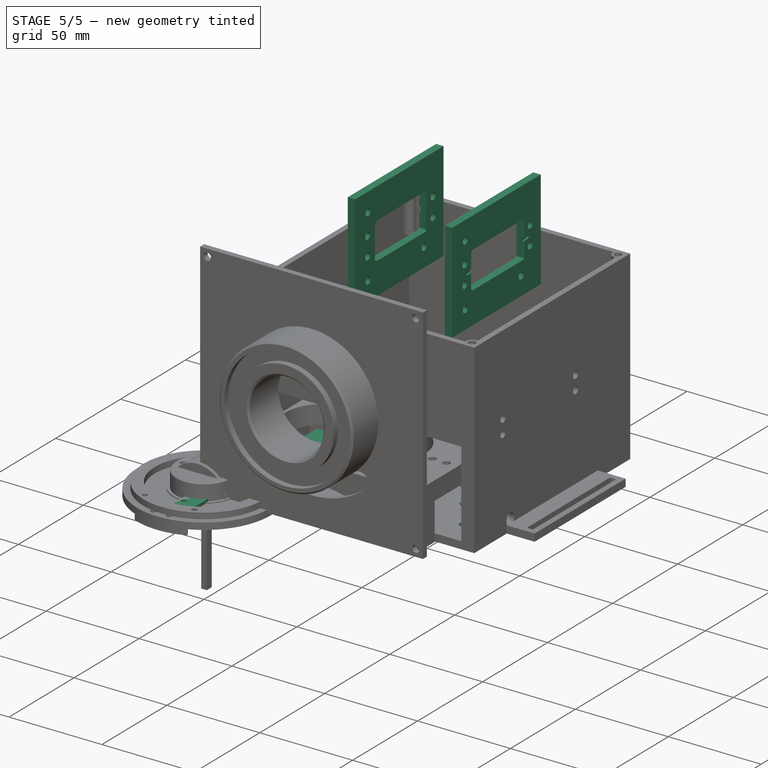
[diagram: stage 5 of 5 — iso view after this stage's code; geometry added in this stage tinted green]
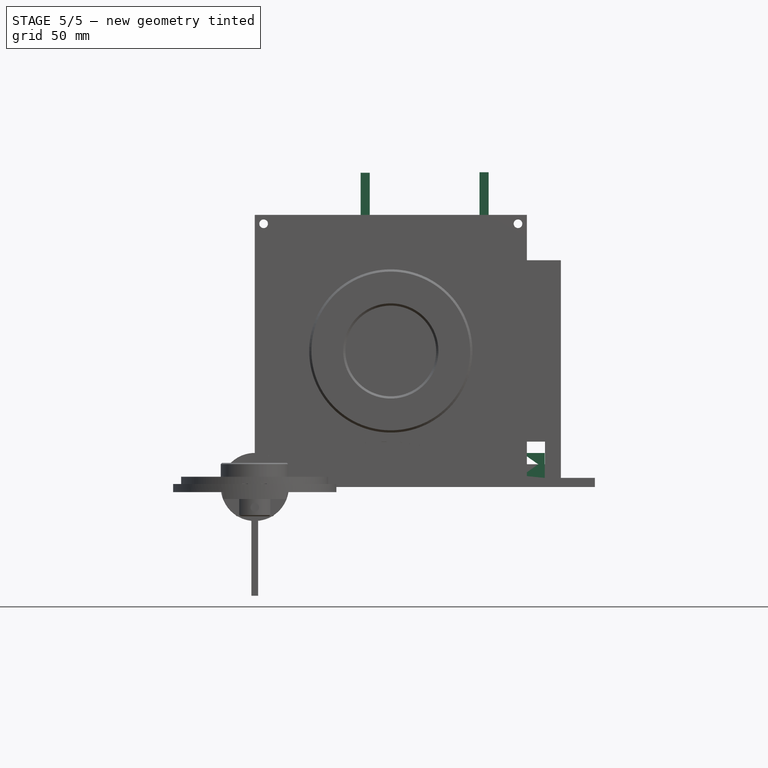
[diagram: stage 5 of 5 — front view after this stage's code; geometry added in this stage tinted green]
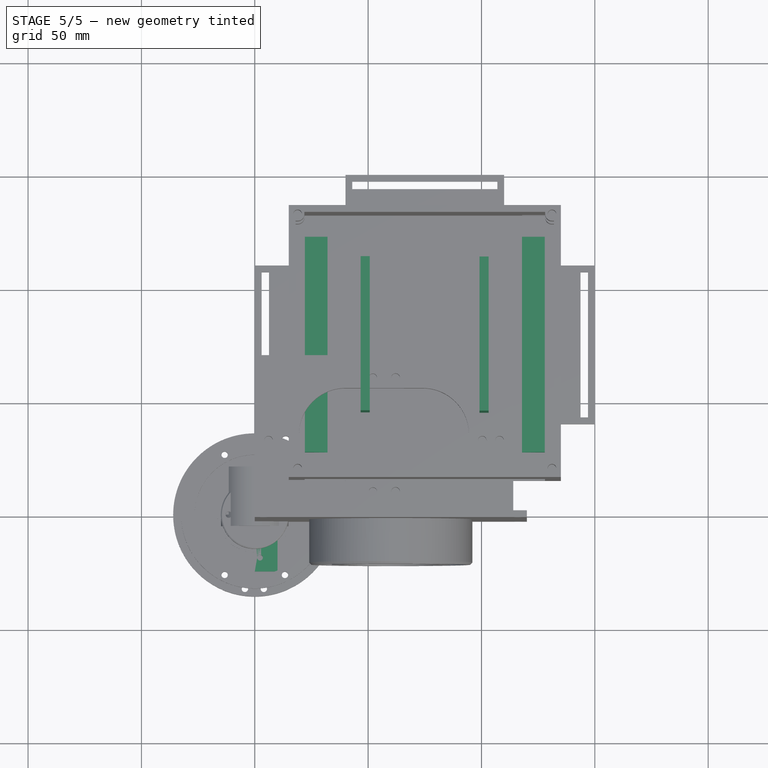
[diagram: stage 5 of 5 — top view after this stage's code; geometry added in this stage tinted green]
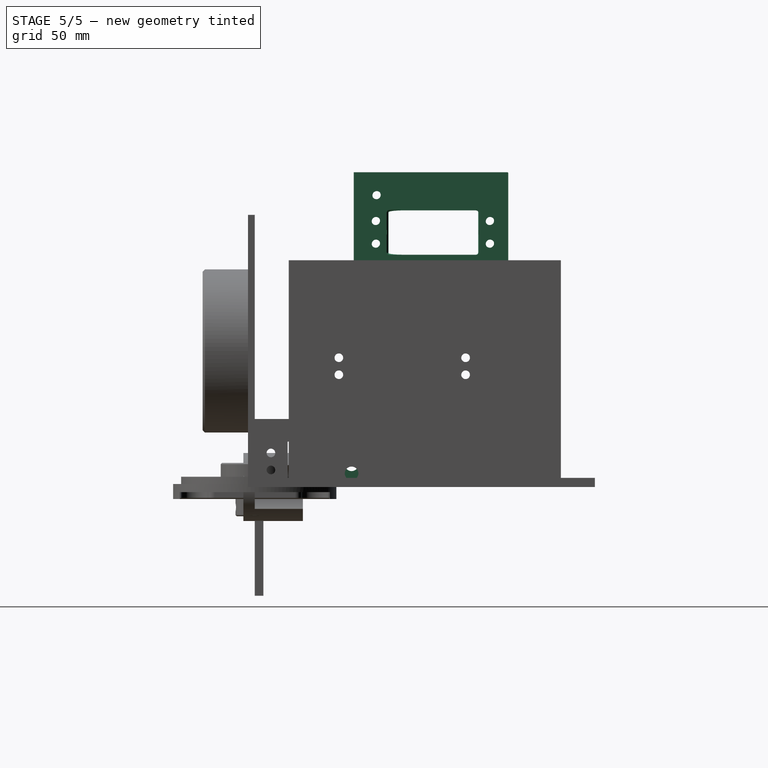
[diagram: stage 5 of 5 — right view after this stage's code; geometry added in this stage tinted green]
FEATURE [Sketcher::SketchObject] Sketch004
  ExternalGeometry = -> [Pocket002]
  MapMode = 5
  Placement = pos=(0,0,4) rot=(0,0,1;0rad)
  Support = -> [Pocket002]
  sketch-geometry (8):
    g0: LineSegment StartX=22.1 StartY=122.5 StartZ=0 EndX=32.1 EndY=122.5 EndZ=0
    g1: LineSegment StartX=32.1 StartY=122.5 StartZ=0 EndX=32.1 EndY=27.5 EndZ=0
    g2: LineSegment StartX=32.1 StartY=27.5 StartZ=0 EndX=22.1 EndY=27.5 EndZ=0
    g3: LineSegment StartX=22.1 StartY=27.5 StartZ=0 EndX=22.1 EndY=122.5 EndZ=0
    g4: LineSegment StartX=117.9 StartY=122.5 StartZ=0 EndX=127.9 EndY=122.5 EndZ=0
    g5: LineSegment StartX=127.9 StartY=122.5 StartZ=0 EndX=127.9 EndY=27.5 EndZ=0
    g6: LineSegment StartX=127.9 StartY=27.5 StartZ=0 EndX=117.9 EndY=27.5 EndZ=0
    g7: LineSegment StartX=117.9 StartY=27.5 StartZ=0 EndX=117.9 EndY=122.5 EndZ=0
  constraints (24):
    c: Coincident(g0,g1)
    c: Coincident(g1,g2)
    c: Coincident(g2,g3)
    c: Coincident(g3,g0)
    c: Horizontal(g0)
    c: Horizontal(g2)
    c: Vertical(g1)
    c: Vertical(g3)
    c: Coincident(g4,g5)
    c: Coincident(g5,g6)
    c: Coincident(g6,g7)
    c: Coincident(g7,g4)
    c: Horizontal(g4)
    c: Horizontal(g6)
    c: Vertical(g5)
    c: Vertical(g7)
    c: Distance(g6) = 10
    c: Distance(g5) = 95
    c: Distance(g2) = 10
    c: Distance(g1) = 95
    c: Distance(g-4,g3) = 7.1
    c: Distance(g-3,g0) = 12.5
    c: Distance(g-6,g5) = 7.1
    c: Distance(g4,g-5) = 12.5
FEATURE [PartDesign::Pad] Pad001
  BaseFeature = -> Pocket002
  Length = 11
  Length2 = 100
  Profile = -> Sketch004
  Type = 0
FEATURE [Sketcher::SketchObject] Sketch005
  ExternalGeometry = -> [Pad001]
  MapMode = 5
  Placement = pos=(0,27.5,0) rot=(1,0,0;1.5708rad)
  Support = -> [Pad001]
  sketch-geometry (15):
    g0: GeomPoint X=24.96 Y=15 Z=0
    g1: GeomPoint X=24.96 Y=4 Z=0
    g2: LineSegment [constr] StartX=24.96 StartY=15 StartZ=0 EndX=24.96 EndY=4 EndZ=0
    g3: GeomPoint X=24.96 Y=10 Z=0
    g4: LineSegment StartX=24.96 StartY=10 StartZ=0 EndX=32.1 EndY=15 EndZ=0
    g5: GeomPoint X=32.1 Y=5 Z=0
    g6: LineSegment StartX=24.96 StartY=10 StartZ=0 EndX=32.1 EndY=5 EndZ=0
    g7: LineSegment StartX=32.1 StartY=5 StartZ=0 EndX=32.1 EndY=15 EndZ=0
    g8: GeomPoint X=125.04 Y=15 Z=0
    g9: LineSegment [constr] StartX=125.04 StartY=15 StartZ=0 EndX=125.04 EndY=4 EndZ=0
    g10: GeomPoint X=125.04 Y=10 Z=0
    g11: GeomPoint X=117.9 Y=5 Z=0
    g12: LineSegment StartX=117.9 StartY=5 StartZ=0 EndX=125.04 EndY=10 EndZ=0
    g13: LineSegment StartX=125.04 StartY=10 StartZ=0 EndX=117.9 EndY=15 EndZ=0
    g14: LineSegment StartX=117.9 StartY=15 StartZ=0 EndX=117.9 EndY=5 EndZ=0
  constraints (31):
    c: PointOnObject(g0,g-3)
    c: PointOnObject(g1,g-6)
    c: Distance(g1,g-6) = 7.14
    c: Distance(g0,g-5) = 7.14
    c: Coincident(g2,g1)
    c: Coincident(g2,g0)
    c: PointOnObject(g3,g2)
    c: Distance(g0,g3) = 5
    c: Coincident(g4,g3)
    c: Coincident(g4,g-5)
    c: PointOnObject(g5,g-5)
    c: Distance(g5,g-6) = 1
    c: Coincident(g6,g3)
    c: Coincident(g6,g5)
    c: Coincident(g7,g4)
    c: Coincident(g7,g5)
    c: PointOnObject(g8,g-8)
    c: Distance(g-8,g8) = 7.14
    c: Coincident(g9,g8)
    c: PointOnObject(g9,g-10)
    c: Vertical(g9)
    c: PointOnObject(g10,g9)
    c: Distance(g8,g10) = 5
    c: PointOnObject(g11,g-7)
    c: Distance(g11,g-10) = 1
    c: Coincident(g12,g11)
    c: Coincident(g12,g10)
    c: Coincident(g13,g10)
    c: Coincident(g13,g-8)
    c: Coincident(g14,g13)
    c: Coincident(g14,g11)
FEATURE [PartDesign::Pocket] Pocket003
  BaseFeature = -> Pad001
  Length = 5
  Length2 = 100
  Profile = -> Sketch005
  Type = 1
FEATURE [Sketcher::SketchObject] Sketch006
  ExternalGeometry = -> [Pocket003]
  MapMode = 5
  Placement = pos=(22.1,0,0) rot=(0.57735,-0.57735,-0.57735;2.0944rad)
  Support = -> [Pocket003]
  sketch-geometry (1):
    g0: Circle CenterX=-42.7 CenterY=10 CenterZ=0 NormalX=0 NormalY=0 NormalZ=1 AngleXU=0 Radius=3
  constraints (3):
    c: Radius(g0) = 3
    c: Distance(g0,g-4) = 15.2
    c: Distance(g0,g-3) = 5
FEATURE [PartDesign::Pocket] Pocket004
  BaseFeature = -> Pocket003
  Length = 5
  Length2 = 100
  Profile = -> Sketch006
  Type = 1
FEATURE [PartDesign::Body] Body001  label="BaseWalls"
  Group = -> [Sketch007,Pad002,Sketch008,Pocket005,Sketch009,Pocket006,Sketch010,Pocket007,Sketch011,Pocket008,Sketch012,Pocket009,Sketch013,Pocket010,Sketch014,Pocket011,Sketch015,Pocket012]
  Origin = -> Origin001
  Placement = pos=(0,0,-44) rot=(0,0,1;0rad)
  Tip = -> Pocket012
FEATURE [Sketcher::SketchObject] Sketch031
  MapMode = 5
  Placement = pos=(0,0,0) rot=(1,0,0;1.5708rad)
  Support = -> [XZ_Plane020]
  sketch-geometry (4):
    g0: LineSegment StartX=0 StartY=0 StartZ=0 EndX=10 EndY=0 EndZ=0
    g1: LineSegment StartX=0 StartY=0 StartZ=0 EndX=0 EndY=3 EndZ=0
    g2: LineSegment StartX=0 StartY=3 StartZ=0 EndX=10 EndY=3 EndZ=0
    g3: LineSegment StartX=10 StartY=3 StartZ=0 EndX=10 EndY=0 EndZ=0
  constraints (11):
    c: Coincident(g0,g-1)
    c: Horizontal(g0)
    c: Coincident(g1,g0)
    c: PointOnObject(g1,g-2)
    c: Coincident(g2,g1)
    c: Horizontal(g2)
    c: Coincident(g3,g2)
    c: Vertical(g3)
    c: Coincident(g0,g3)
    c: Distance(g0,g0) = 10
    c: Distance(g1,g0) = 3
FEATURE [PartDesign::Pad] Pad005
  Length = 25
  Length2 = 100
  Placement = pos=(0,0,0) rot=(1,0,0;1.5708rad)
  Profile = -> Sketch031
  Type = 0
FEATURE [Sketcher::SketchObject] Sketch032
  MapMode = 5
  Placement = pos=(0,1.3e-15,3) rot=(0,0,1;3.14159rad)
  Support = -> [Pad005]
  sketch-geometry (2):
    g0: Circle CenterX=-2.3 CenterY=18.9 CenterZ=0 NormalX=0 NormalY=0 NormalZ=1 AngleXU=0 Radius=1.25
    g1: Circle CenterX=-2.3 CenterY=9.4 CenterZ=0 NormalX=0 NormalY=0 NormalZ=1 AngleXU=0 Radius=1.25
  constraints (6):
    c: Radius(g0) = 1.25
    c: Radius(g1) = 1.25
    c: Distance(g1,g-2) = 2.3
    c: Distance(g0,g-2) = 2.3
    c: Distance(g0,g-1) = 18.9
    c: Distance(g1,g-1) = 9.4
FEATURE [PartDesign::Pocket] Pocket025
  BaseFeature = -> Pad005
  Length = 5
  Length2 = 100
  Placement = pos=(0,0,0) rot=(1,0,0;1.5708rad)
  Profile = -> Sketch032
  Type = 0
FEATURE [Sketcher::SketchObject] Sketch033
  ExternalGeometry = -> [Pocket025]
  MapMode = 5
  Placement = pos=(0,0,0) rot=(1,0,0;1.5708rad)
  Support = -> [XZ_Plane020]
  sketch-geometry (8):
    g0: LineSegment [constr] StartX=0 StartY=0 StartZ=0 EndX=0 EndY=-4.5 EndZ=0
    g1: LineSegment [constr] StartX=0 StartY=-4.5 StartZ=0 EndX=10 EndY=-4.5 EndZ=0
    g2: LineSegment [constr] StartX=10 StartY=-4.5 StartZ=0 EndX=10 EndY=0 EndZ=0
    g3: Circle CenterX=5 CenterY=-2.25 CenterZ=0 NormalX=0 NormalY=0 NormalZ=1 AngleXU=0 Radius=1.9
    g4: LineSegment [constr] StartX=0 StartY=3 StartZ=0 EndX=0 EndY=7.5 EndZ=0
    g5: LineSegment [constr] StartX=0 StartY=7.5 StartZ=0 EndX=10 EndY=7.5 EndZ=0
    g6: LineSegment [constr] StartX=10 StartY=7.5 StartZ=0 EndX=10 EndY=3 EndZ=0
    g7: Circle CenterX=5 CenterY=5.25 CenterZ=0 NormalX=0 NormalY=0 NormalZ=1 AngleXU=0 Radius=1.9
  constraints (23):
    c: PointOnObject(g0,g-2)
    c: Coincident(g1,g0)
    c: Horizontal(g1)
    c: Coincident(g2,g1)
    c: Coincident(g2,g-4)
    c: Vertical(g2)
    c: DistanceY(g0,g0) = 4.5
    c: Coincident(g0,g-1)
    c: Radius(g3) = 1.9
    c: Distance(g3,g0) = 5
    c: DistanceX(g1,g1) = 10
    c: Distance(g3,g1) = 2.25
    c: Coincident(g4,g-3)
    c: PointOnObject(g4,g-2)
    c: Coincident(g5,g4)
    c: Horizontal(g5)
    c: Coincident(g6,g5)
    c: Coincident(g6,g-4)
    c: Vertical(g6)
    c: DistanceY(g4,g4) = 4.5
    c: Radius(g7) = 1.9
    c: Distance(g7,g4) = 5
    c: Distance(g7,g5) = 2.25
FEATURE [PartDesign::AdditiveBox] Box002
  AttacherType = Attacher::AttachEngine3D
  AttachmentOffset = pos=(0,-7.5,0) rot=(0,0,1;0rad)
  BaseFeature = -> Pocket025
  Height = 3
  Length = 10
  MapMode = 5
  Placement = pos=(0,1.7e-15,7.5) rot=(-1,0,0;1.5708rad)
  Support = -> [Pocket025]
  Width = 12
FEATURE [PartDesign::Pocket] Pocket026
  BaseFeature = -> Box002
  Length = 5
  Length2 = 100
  Placement = pos=(0,3e-15,7.5) rot=(-1,0,0;1.5708rad)
  Profile = -> Sketch033
  Type = 1
FEATURE [PartDesign::Body] Body004  label="EndRacePart"
  Group = -> [Sketch031,Pad005,Sketch032,Pocket025,Sketch033,Box002,Pocket026]
  Origin = -> Origin019
  Placement = pos=(123.595,57.4756,30.9872) rot=(-0.57735,-0.57735,0.57735;2.0944rad)
  Tip = -> Pocket026
FEATURE [Part::Feature] Part__Feature122  label="Screw_3x8"
  Placement = pos=(62.7475,7.25547,-24.6) rot=(0,0,1;2.41757rad)
  shape: bbox 5.6 x 5.6 x 10.4 mm, 89 faces (baked)
FEATURE [App::Part] S3006_S148_U301PAA  label="DemoBaseMotor"
  Group = -> [Part__Feature122,SCREW_1_7x24,Part__Feature121]
  Origin = -> Origin011
  Placement = pos=(85,85.2,26.55) rot=(0,0,-1;3.14159rad)
FEATURE [Sketcher::SketchObject] Sketch044
  MapMode = 5
  sketch-geometry (24):
    g0: LineSegment StartX=0 StartY=0 StartZ=0 EndX=0 EndY=53.4 EndZ=0
    g1: LineSegment StartX=0 StartY=0 StartZ=0 EndX=-68 EndY=0 EndZ=0
    g2: LineSegment StartX=-68 StartY=0 StartZ=0 EndX=-68 EndY=53.4 EndZ=0
    g3: LineSegment StartX=-68 StartY=53.4 StartZ=0 EndX=0 EndY=53.4 EndZ=0
    g4: LineSegment [constr] StartX=-53 StartY=0 StartZ=0 EndX=-53 EndY=10 EndZ=0
    g5: Circle CenterX=-53 CenterY=10 CenterZ=0 NormalX=0 NormalY=0 NormalZ=1 AngleXU=0 Radius=1.9
    g6: LineSegment [constr] StartX=-53 StartY=10 StartZ=0 EndX=-10 EndY=10 EndZ=0
    g7: Circle CenterX=-10 CenterY=10 CenterZ=0 NormalX=0 NormalY=0 NormalZ=1 AngleXU=0 Radius=1.9
    g8: LineSegment [constr] StartX=-10 StartY=10 StartZ=0 EndX=-10 EndY=43.4 EndZ=0
    g9: Circle CenterX=-10 CenterY=43.4 CenterZ=0 NormalX=0 NormalY=0 NormalZ=1 AngleXU=0 Radius=1.9
    g10: LineSegment [constr] StartX=-53 StartY=10 StartZ=0 EndX=-44.7 EndY=26.7 EndZ=0
    g11: Circle CenterX=-44.7 CenterY=26.7 CenterZ=0 NormalX=0 NormalY=0 NormalZ=1 AngleXU=0 Radius=5
    g12: LineSegment [constr] StartX=-10 StartY=43.4 StartZ=0 EndX=0 EndY=43.4 EndZ=0
    g13: Circle CenterX=-60 CenterY=32 CenterZ=0 NormalX=0 NormalY=0 NormalZ=1 AngleXU=0 Radius=1.9
    g14: Circle CenterX=-60 CenterY=22 CenterZ=0 NormalX=0 NormalY=0 NormalZ=1 AngleXU=0 Radius=1.9
    g15: LineSegment [constr] StartX=-60 StartY=22 StartZ=0 EndX=-60 EndY=32 EndZ=0
    g16: LineSegment [constr] StartX=-60 StartY=22 StartZ=0 EndX=-60 EndY=0 EndZ=0
    g17: LineSegment [constr] StartX=-60 StartY=22 StartZ=0 EndX=-68 EndY=22 EndZ=0
    g18: LineSegment [constr] StartX=-60 StartY=22 StartZ=0 EndX=-10 EndY=22 EndZ=0
    g19: Circle CenterX=-9.7 CenterY=22 CenterZ=0 NormalX=0 NormalY=0 NormalZ=1 AngleXU=0 Radius=1.9
    g20: LineSegment [constr] StartX=-9.7 StartY=22 StartZ=0 EndX=-9.7 EndY=32 EndZ=0
    g21: Circle CenterX=-9.7 CenterY=32 CenterZ=0 NormalX=0 NormalY=0 NormalZ=1 AngleXU=0 Radius=1.9
    g22: LineSegment [constr] StartX=-9.7 StartY=22 StartZ=0 EndX=-9.7 EndY=0 EndZ=0
    g23: LineSegment [constr] StartX=-9.7 StartY=22 StartZ=0 EndX=0 EndY=22 EndZ=0
  constraints (66):
    c: Coincident(g0,g-1)
    c: PointOnObject(g0,g-2)
    c: DistanceY(g0,g0) = 53.4
    c: Coincident(g1,g0)
    c: PointOnObject(g1,g-1)
    c: DistanceX(g1,g1) = 68
    c: Coincident(g2,g1)
    c: Equal(g2,g0)
    c: Coincident(g3,g2)
    c: Coincident(g3,g0)
    c: Equal(g3,g1)
    c: PointOnObject(g4,g1)
    c: Vertical(g4)
    c: DistanceY(g4,g4) = 10
    c: Coincident(g5,g4)
    c: Radius(g5) = 1.9
    c: Coincident(g6,g5)
    c: Horizontal(g6)
    c: DistanceX(g6,g6) = 43
    c: Coincident(g7,g6)
    c: Radius(g7) = 1.9
    c: Coincident(g8,g7)
    c: Vertical(g8)
    c: DistanceY(g8,g8) = 33.4
    c: Coincident(g9,g8)
    c: Radius(g9) = 1.9
    c: Coincident(g10,g5)
    c: Angle(g6,g10) = 1.10955
    c: Distance(g10) = 18.6489
    c: Coincident(g11,g10)
    c: Radius(g11) = 5
    c: Coincident(g12,g9)
    c: PointOnObject(g12,g0)
    c: Horizontal(g12)
    c: DistanceX(g12,g12) = 10
    c: Radius(g13) = 1.9
    c: Radius(g14) = 1.9
    c: Coincident(g15,g14)
    c: Coincident(g15,g13)
    c: Vertical(g15)
    c: DistanceY(g15,g15) = 10
    c: Coincident(g16,g14)
    c: PointOnObject(g16,g1)
    c: Vertical(g16)
    c: DistanceY(g16,g16) = 22
    c: Coincident(g17,g14)
    c: PointOnObject(g17,g2)
    c: Horizontal(g17)
    c: DistanceX(g17,g17) = 8
    c: Coincident(g18,g14)
    c: PointOnObject(g18,g8)
    c: Horizontal(g18)
    c: Radius(g19) = 1.9
    c: Coincident(g20,g19)
    c: Vertical(g20)
    c: DistanceY(g20,g20) = 10
    c: Coincident(g21,g20)
    c: Radius(g21) = 1.9
    c: Coincident(g22,g19)
    c: PointOnObject(g22,g1)
    c: Vertical(g22)
    c: Equal(g22,g16)
    c: Coincident(g23,g19)
    c: PointOnObject(g23,g0)
    c: Horizontal(g23)
    c: DistanceX(g23,g23) = 9.7
FEATURE [PartDesign::Pad] Pad009
  Length = 4
  Length2 = 100
  Profile = -> Sketch044
  Type = 0
FEATURE [Part::Feature] Part__Feature123  label="Case001"
  Placement = pos=(-55,17,8) rot=(0.707107,0.707107,0;3.14159rad)
  shape: bbox 68.3 x 20.02 x 42.1 mm, 433 faces (baked)
FEATURE [Part::FeaturePython] Cutout  label="LeftJointSupport"  # WARN: FeaturePython — macro-defined, semantics opaque (R4)
  Base = -> Pad009
  Placement = pos=(50.7,43.8,85.2) rot=(0.57735,-0.57735,-0.57735;2.0944rad)
  Tolerance = 0
  Tool = -> Part__Feature123
FEATURE [Part::Feature] Part__Feature124  label="Screw_3x009"
  Placement = pos=(62.7475,7.25547,-24.6) rot=(0,0,1;2.41757rad)
  shape: bbox 5.6 x 5.6 x 10.4 mm, 89 faces (baked)
FEATURE [Part::Feature] Part__Feature125  label="Case002"
  shape: bbox 20.02 x 68.3 x 42.1 mm, 433 faces (baked)
FEATURE [Part::Feature] Part__Feature126  label="b005"
  Placement = pos=(12.4,19.44,-0.6) rot=(0,0,1;0rad)
  shape: bbox 3.247 x 3.247 x 24.91 mm, 35 faces (baked)
FEATURE [Part::Feature] Part__Feature127  label="b006"
  Placement = pos=(-2.6,19.44,-0.6) rot=(0,0,1;0rad)
  shape: bbox 3.247 x 3.247 x 24.91 mm, 35 faces (baked)
FEATURE [Part::Feature] Part__Feature128  label="b007"
  Placement = pos=(12.4,-16.06,-0.6) rot=(0,0,1;0rad)
  shape: bbox 3.247 x 3.247 x 24.91 mm, 35 faces (baked)
FEATURE [Part::Feature] Part__Feature129  label="b008"
  Placement = pos=(-2.6,-16.06,-0.6) rot=(0,0,1;0rad)
  shape: bbox 3.247 x 3.247 x 24.91 mm, 35 faces (baked)
FEATURE [App::Part] SCREW_1_7x025  label="SCREW-1.7x025"
  Group = -> [Part__Feature128,Part__Feature129,Part__Feature127,Part__Feature126]
  Origin = -> Origin021
  Placement = pos=(0,0,-2.6) rot=(0,0,1;0rad)
FEATURE [App::Part] S3006_S148_U301PAA001  label="LeftDemoMotor"
  Group = -> [Part__Feature124,SCREW_1_7x025,Part__Feature125]
  Origin = -> Origin022
  Placement = pos=(42.6,98.7,102.25) rot=(0.707107,0,0.707107;3.14159rad)
FEATURE [Sketcher::SketchObject] Sketch045
  MapMode = 5
  sketch-geometry (24):
    g0: LineSegment StartX=0 StartY=0 StartZ=0 EndX=0 EndY=53.4 EndZ=0
    g1: LineSegment StartX=0 StartY=0 StartZ=0 EndX=-68 EndY=0 EndZ=0
    g2: LineSegment StartX=-68 StartY=0 StartZ=0 EndX=-68 EndY=53.4 EndZ=0
    g3: LineSegment StartX=-68 StartY=53.4 StartZ=0 EndX=0 EndY=53.4 EndZ=0
    g4: LineSegment [constr] StartX=-53 StartY=0 StartZ=0 EndX=-53 EndY=10 EndZ=0
    g5: Circle CenterX=-53 CenterY=10 CenterZ=0 NormalX=0 NormalY=0 NormalZ=1 AngleXU=0 Radius=1.9
    g6: LineSegment [constr] StartX=-53 StartY=10 StartZ=0 EndX=-10 EndY=10 EndZ=0
    g7: Circle CenterX=-10 CenterY=10 CenterZ=0 NormalX=0 NormalY=0 NormalZ=1 AngleXU=0 Radius=1.9
    g8: LineSegment [constr] StartX=-10 StartY=10 StartZ=0 EndX=-10 EndY=43.4 EndZ=0
    g9: Circle CenterX=-10 CenterY=43.4 CenterZ=0 NormalX=0 NormalY=0 NormalZ=1 AngleXU=0 Radius=1.9
    g10: LineSegment [constr] StartX=-53 StartY=10 StartZ=0 EndX=-44.7 EndY=26.7 EndZ=0
    g11: Circle CenterX=-44.7 CenterY=26.7 CenterZ=0 NormalX=0 NormalY=0 NormalZ=1 AngleXU=0 Radius=5
    g12: LineSegment [constr] StartX=-10 StartY=43.4 StartZ=0 EndX=0 EndY=43.4 EndZ=0
    g13: Circle CenterX=-60 CenterY=32 CenterZ=0 NormalX=0 NormalY=0 NormalZ=1 AngleXU=0 Radius=1.9
    g14: Circle CenterX=-60 CenterY=22 CenterZ=0 NormalX=0 NormalY=0 NormalZ=1 AngleXU=0 Radius=1.9
    g15: LineSegment [constr] StartX=-60 StartY=22 StartZ=0 EndX=-60 EndY=32 EndZ=0
    g16: LineSegment [constr] StartX=-60 StartY=22 StartZ=0 EndX=-60 EndY=0 EndZ=0
    g17: LineSegment [constr] StartX=-60 StartY=22 StartZ=0 EndX=-68 EndY=22 EndZ=0
    g18: LineSegment [constr] StartX=-60 StartY=22 StartZ=0 EndX=-10 EndY=22 EndZ=0
    g19: Circle CenterX=-9.7 CenterY=22 CenterZ=0 NormalX=0 NormalY=0 NormalZ=1 AngleXU=0 Radius=1.9
    g20: LineSegment [constr] StartX=-9.7 StartY=22 StartZ=0 EndX=-9.7 EndY=32 EndZ=0
    g21: Circle CenterX=-9.7 CenterY=32 CenterZ=0 NormalX=0 NormalY=0 NormalZ=1 AngleXU=0 Radius=1.9
    g22: LineSegment [constr] StartX=-9.7 StartY=22 StartZ=0 EndX=-9.7 EndY=0 EndZ=0
    g23: LineSegment [constr] StartX=-9.7 StartY=22 StartZ=0 EndX=0 EndY=22 EndZ=0
  constraints (66):
    c: Coincident(g0,g-1)
    c: PointOnObject(g0,g-2)
    c: DistanceY(g0,g0) = 53.4
    c: Coincident(g1,g0)
    c: PointOnObject(g1,g-1)
    c: DistanceX(g1,g1) = 68
    c: Coincident(g2,g1)
    c: Equal(g2,g0)
    c: Coincident(g3,g2)
    c: Coincident(g3,g0)
    c: Equal(g3,g1)
    c: PointOnObject(g4,g1)
    c: Vertical(g4)
    c: DistanceY(g4,g4) = 10
    c: Coincident(g5,g4)
    c: Radius(g5) = 1.9
    c: Coincident(g6,g5)
    c: Horizontal(g6)
    c: DistanceX(g6,g6) = 43
    c: Coincident(g7,g6)
    c: Radius(g7) = 1.9
    c: Coincident(g8,g7)
    c: Vertical(g8)
    c: DistanceY(g8,g8) = 33.4
    c: Coincident(g9,g8)
    c: Radius(g9) = 1.9
    c: Coincident(g10,g5)
    c: Angle(g6,g10) = 1.10955
    c: Distance(g10) = 18.6489
    c: Coincident(g11,g10)
    c: Radius(g11) = 5
    c: Coincident(g12,g9)
    c: PointOnObject(g12,g0)
    c: Horizontal(g12)
    c: DistanceX(g12,g12) = 10
    c: Radius(g13) = 1.9
    c: Radius(g14) = 1.9
    c: Coincident(g15,g14)
    c: Coincident(g15,g13)
    c: Vertical(g15)
    c: DistanceY(g15,g15) = 10
    c: Coincident(g16,g14)
    c: PointOnObject(g16,g1)
    c: Vertical(g16)
    c: DistanceY(g16,g16) = 22
    c: Coincident(g17,g14)
    c: PointOnObject(g17,g2)
    c: Horizontal(g17)
    c: DistanceX(g17,g17) = 8
    c: Coincident(g18,g14)
    c: PointOnObject(g18,g8)
    c: Horizontal(g18)
    c: Radius(g19) = 1.9
    c: Coincident(g20,g19)
    c: Vertical(g20)
    c: DistanceY(g20,g20) = 10
    c: Coincident(g21,g20)
    c: Radius(g21) = 1.9
    c: Coincident(g22,g19)
    c: PointOnObject(g22,g1)
    c: Vertical(g22)
    c: Equal(g22,g16)
    c: Coincident(g23,g19)
    c: PointOnObject(g23,g0)
    c: Horizontal(g23)
    c: DistanceX(g23,g23) = 9.7
FEATURE [Part::Feature] Part__Feature130  label="Case003"
  Placement = pos=(-55,17,8) rot=(0.707107,0.707107,0;3.14159rad)
  shape: bbox 68.3 x 20.02 x 42.1 mm, 433 faces (baked)
FEATURE [PartDesign::Pad] Pad010
  Length = 4
  Length2 = 100
  Profile = -> Sketch045
  Type = 0
FEATURE [Part::FeaturePython] Cutout001  # WARN: FeaturePython — macro-defined, semantics opaque (R4)
  Base = -> Pad010
  Tolerance = 0
  Tool = -> Part__Feature130
FEATURE [Part::Mirroring] Part__Mirroring  label="RightJointSupport"
  Base = (0,0,0)
  Normal = (0,0,1)
  Placement = pos=(99.125,43.6453,85.4393) rot=(0.57735,-0.57735,-0.57735;2.0944rad)
  Source = -> Cutout001
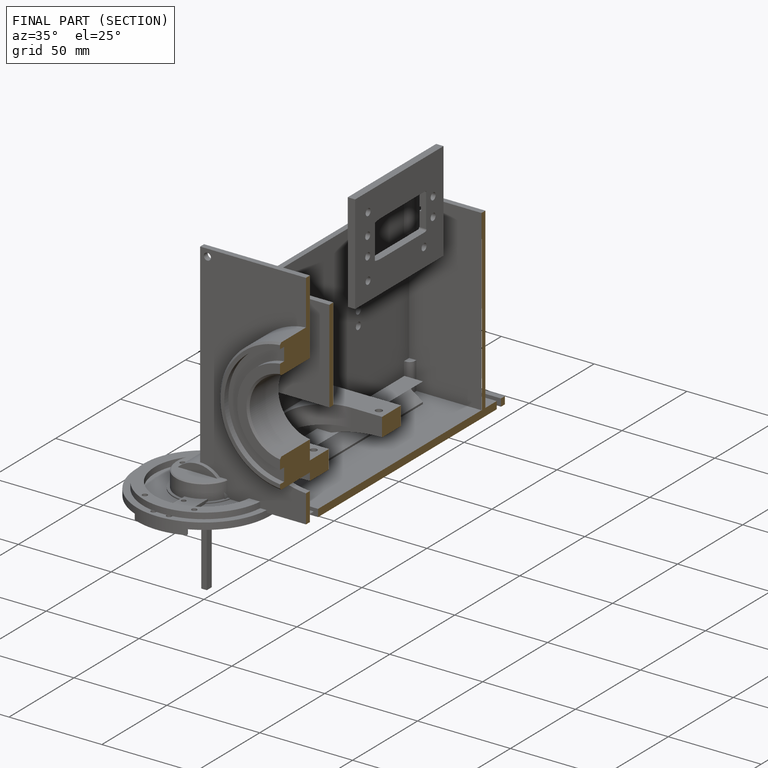
[diagram: finished part — half-section view (interior)]
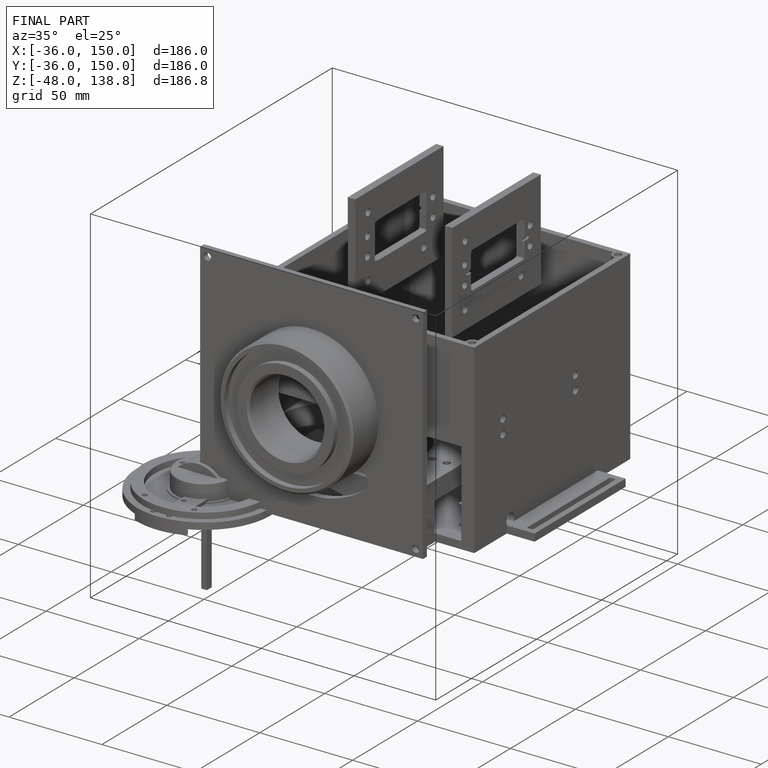
[diagram: finished part — iso view with bounding-box wireframe]
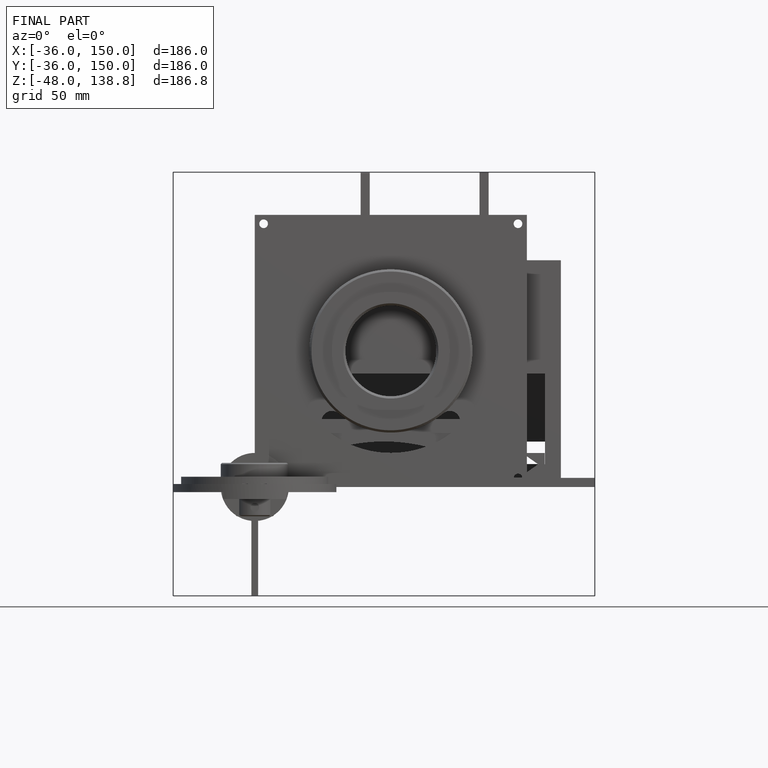
[diagram: finished part — front view with bounding-box wireframe]
